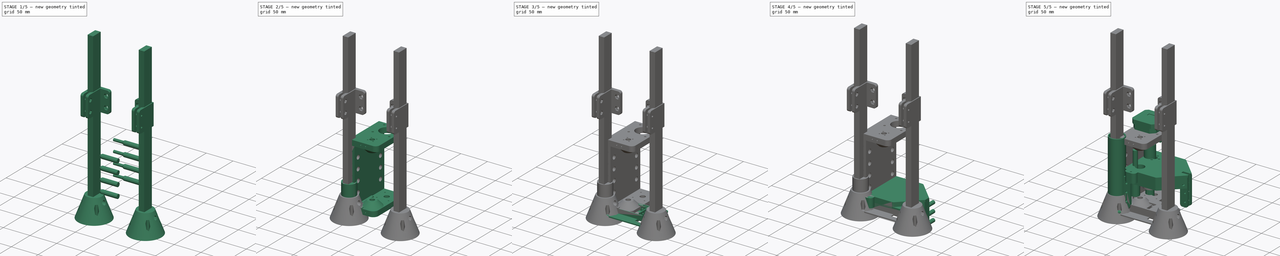
[diagram: build sequence overview — one tinted view per stage of 5, left to right]
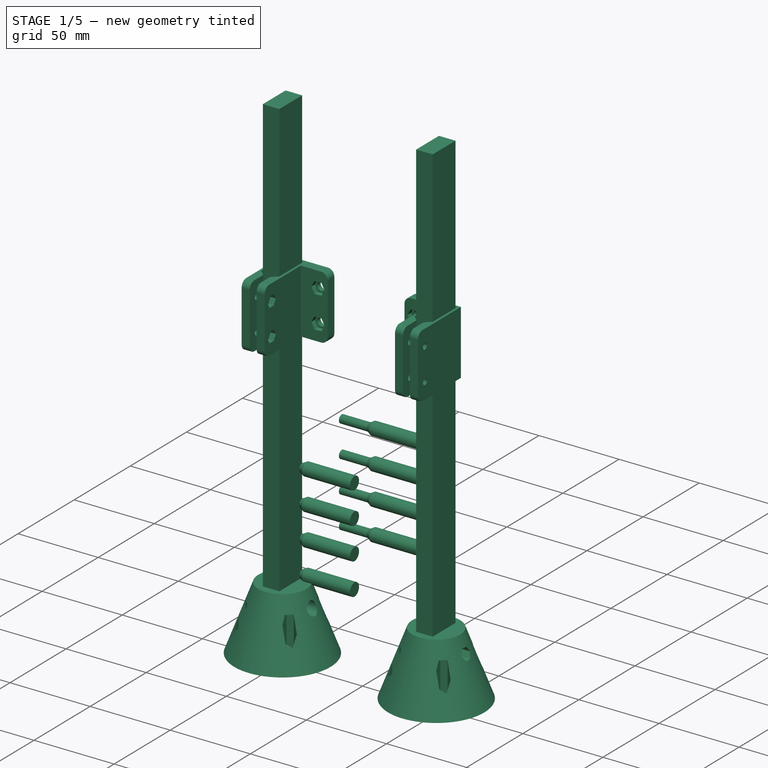
[diagram: stage 1 of 5 — iso view after this stage's code; geometry added in this stage tinted green]
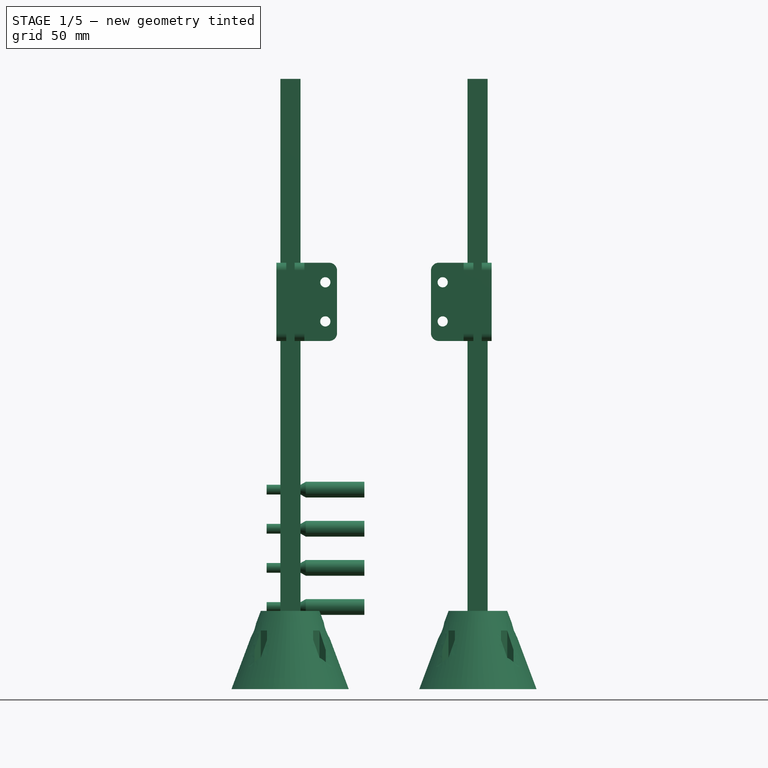
[diagram: stage 1 of 5 — front view after this stage's code; geometry added in this stage tinted green]
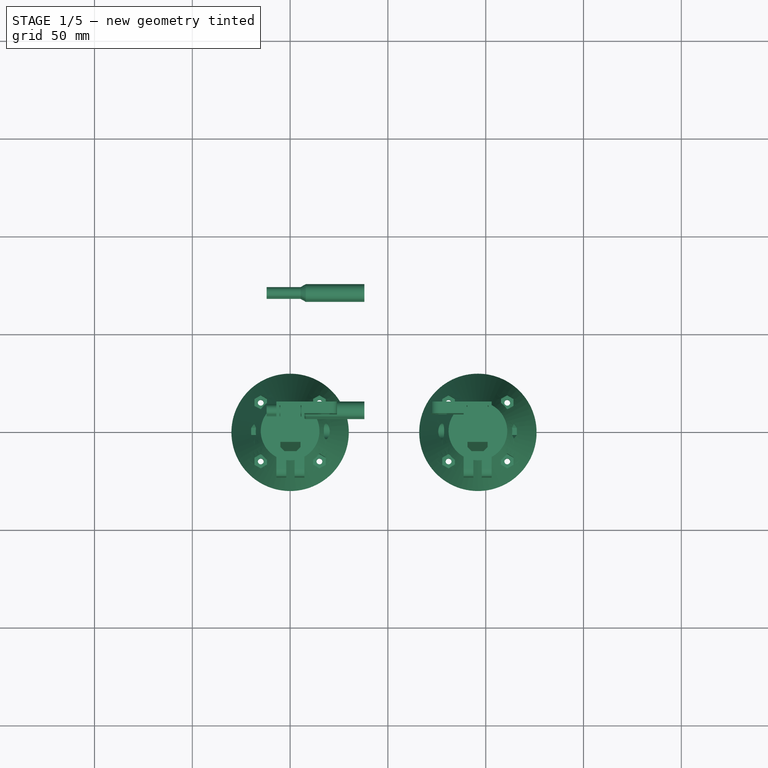
[diagram: stage 1 of 5 — top view after this stage's code; geometry added in this stage tinted green]
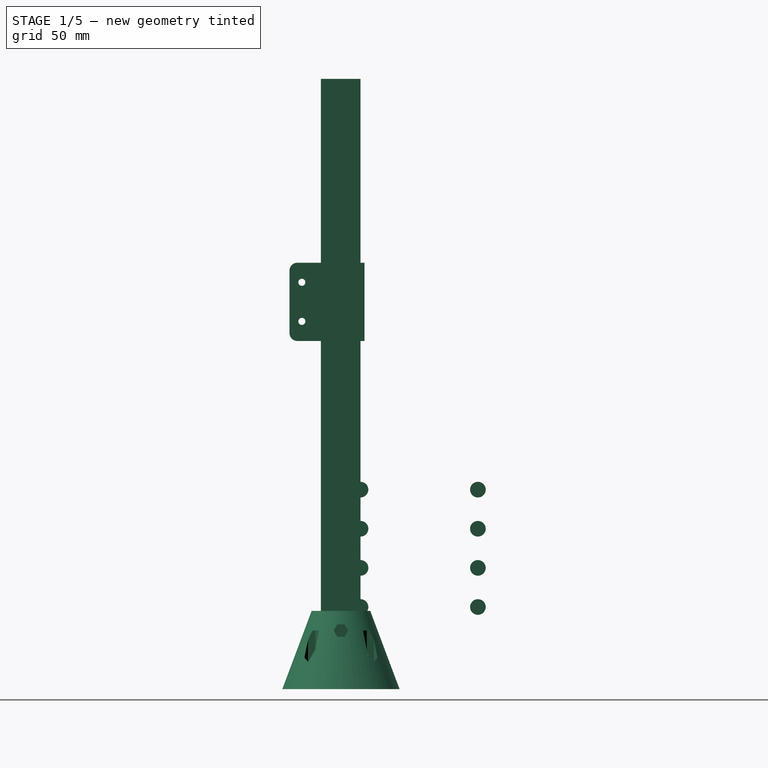
[diagram: stage 1 of 5 — right view after this stage's code; geometry added in this stage tinted green]
FCSTD DOCUMENT  (FreeCAD 0.18.4R)
Label: microscope
License: All rights reserved
LicenseURL: http://en.wikipedia.org/wiki/All_rights_reserved
objects: Part::Cylinder×73, Part::MultiFuse×40, Part::Box×36, Part::FeaturePython×33, Part::Cut×30, Part::Fillet×22, App::Part×20, PartDesign::Body×20, PartDesign::FeatureBase×18, Part::Compound×7, Part::Cone×5, Part::Mirroring×4, Part::RegularPolygon×3, Part::Extrusion×3, Sketcher::SketchObject×2, PartDesign::Pad×2, Part::Feature×2, Part::Chamfer×2, Spreadsheet::Sheet×1
note: 304 computed .brp shape members not serialized (recipe doc carries the construction recipe); baked Part::Feature solids carry a one-line shape summary decoded from their .brp

FEATURE [Part::Cylinder] Cylinder048  label="narrow hole"
  Angle = 360
  AttacherType = Attacher::AttachEngine3D
  Height = 20
  Placement = pos=(5,15,21) rot=(1,0,0;1.5708rad)
  Radius = 1
  expr: Placement.Base.x = p.mblock_wall_length / 2
FEATURE [Part::Cylinder] Cylinder049  label="wall bolt hole"
  Angle = 360
  AttacherType = Attacher::AttachEngine3D
  Height = 30
  Radius = 2.5
FEATURE [Part::Cone] Cone002  label="bolt cone"
  Angle = 360
  AttacherType = Attacher::AttachEngine3D
  Height = 3.5
  Placement = pos=(0,0,16.5) rot=(0,0,1;0rad)
  Radius1 = 2
  Radius2 = 4
FEATURE [Part::Cylinder] Cylinder050  label="wall bolt head hole"
  Angle = 360
  AttacherType = Attacher::AttachEngine3D
  Height = 30
  Placement = pos=(0,0,20) rot=(0,0,1;0rad)
  Radius = 4
FEATURE [Part::MultiFuse] Fusion019  label="wall bolt hole fusion"
  Placement = pos=(-12,10,30) rot=(0,1,0;1.5708rad)
  Shapes = -> [Cylinder049,Cone002,Cylinder050]
  expr: Placement.Base.x = -p.mblock_wall_length - 2
FEATURE [Part::FeaturePython] Array001021  label="wall bolt hole array"  # Draft array (typed FeaturePython)
  Angle = 360
  ArrayType = 0
  Axis = (0,0,1)
  Base = -> Fusion019
  Center = (0,0,0)
  Fuse = false
  IntervalAxis = (0,0,0)
  IntervalX = (1,0,0)
  IntervalY = (0,60,0)
  IntervalZ = (0,0,20)
  NumberPolar = 1
  NumberX = 1
  NumberY = 2
  NumberZ = 4
  expr: IntervalY.y = p.mblock_width - 20
FEATURE [Part::Box] Box038  label="cube 20x10"
  AttacherType = Attacher::AttachEngine3D
  Height = 300
  Length = 20.3
  Width = 10.3
  expr: Width = p.cube_profile_width
  expr: Length = p.cube_profile_length
FEATURE [App::Part] Part016  label="profile mockups"
  Group = -> [Cylinder071,Cylinder072,Box038]
  Origin = -> Origin024
FEATURE [Part::Cone] Cone006  label="Cone"
  Angle = 360
  AttacherType = Attacher::AttachEngine3D
  Height = 40
  Radius1 = 30
  Radius2 = 15
FEATURE [PartDesign::FeatureBase] Clone006
  BaseFeature = -> Box038
FEATURE [PartDesign::Body] Body008  label="cube 20x10 clone"
  BaseFeature = -> Box038
  Group = -> [Clone006]
  Origin = -> Origin026
  Placement = pos=(-10,-5,3) rot=(0,0,1;0rad)
  Tip = -> Clone006
FEATURE [Part::Cylinder] Cylinder073  label="screw bolt hole"
  Angle = 360
  AttacherType = Attacher::AttachEngine3D
  Height = 30
  Radius = 1.5
FEATURE [Part::Cylinder] Cylinder074  label="screw bolt hole001"
  Angle = 360
  AttacherType = Attacher::AttachEngine3D
  Height = 60
  Placement = pos=(0,0,0) rot=(1,0,0;1.5708rad)
  Radius = 1.5
FEATURE [Part::Cylinder] Cylinder075  label="bolt hole003"
  Angle = 360
  AttacherType = Attacher::AttachEngine3D
  Height = 30
  Placement = pos=(0,0,0) rot=(1,0,0;1.5708rad)
  Radius = 1.8
FEATURE [Part::Cylinder] Cylinder076  label="bolt head hole001"
  Angle = 360
  AttacherType = Attacher::AttachEngine3D
  Height = 20
  Placement = pos=(0,-2,0) rot=(1,0,0;1.5708rad)
  Radius = 4
FEATURE [Part::RegularPolygon] RegularPolygon001  label="m3 nut polygon001"
  AttacherType = Attacher::AttachEngine3D
  Circumradius = 3.7
  Polygon = 6
  expr: Circumradius = p.m3_nut_circumradius
FEATURE [Part::Extrusion] Extrude001  label="m3 nut extrude"
  Base = -> RegularPolygon001
  Dir = (0,0,1)
  DirMode = 2
  FaceMakerClass = Part::FaceMakerBullseye
  LengthFwd = 20
  LengthRev = 0
  Solid = true
  Symmetric = false
FEATURE [PartDesign::FeatureBase] Clone008
  BaseFeature = -> Extrude001
FEATURE [PartDesign::Body] Body010  label="m3 nut horizontal clone"
  BaseFeature = -> Extrude001
  Group = -> [Clone008]
  Origin = -> Origin028
  Placement = pos=(0,-40,1.18e-14) rot=(1,0,0;1.5708rad)
  Tip = -> Clone008
FEATURE [Part::MultiFuse] Fusion049  label="bolt with head hole fusion"
  Placement = pos=(0,30,30) rot=(0,0,1;0rad)
  Shapes = -> [Cylinder074,Cylinder075,Cylinder076,Body010]
FEATURE [PartDesign::FeatureBase] Clone009
  BaseFeature = -> Extrude001
FEATURE [PartDesign::Body] Body011  label="m3 nut vertical clone"
  BaseFeature = -> Extrude001
  Group = -> [Clone009]
  Origin = -> Origin029
  Placement = pos=(0,0,10) rot=(0,0,1;0rad)
  Tip = -> Clone009
FEATURE [Part::MultiFuse] Fusion050  label="screw bolt nut fusion"
  Placement = pos=(-15,-15,0) rot=(0,0,1;0rad)
  Shapes = -> [Cylinder073,Body011]
FEATURE [Part::FeaturePython] Array001041  label="bolt scre hole array"  # Draft array (typed FeaturePython)
  Angle = 360
  ArrayType = 0
  Axis = (0,0,1)
  Base = -> Fusion050
  Center = (0,0,0)
  Fuse = false
  IntervalAxis = (0,0,0)
  IntervalX = (30,0,0)
  IntervalY = (0,30,0)
  IntervalZ = (0,0,1)
  NumberPolar = 1
  NumberX = 2
  NumberY = 2
  NumberZ = 1
FEATURE [Part::MultiFuse] Fusion048  label="extraction fusion"
  Shapes = -> [Body008,Array001041,Fusion049]
FEATURE [Part::Cut] Cut023011  label="cube 20x10 stand cut"
  Base = -> Cone006
  Tool = -> Fusion048
FEATURE [App::Part] Part018  label="profile cap"
  Group = -> [Body012,Box039,Cut023012,Fillet019,Fillet020]
  Origin = -> Origin030
FEATURE [Part::Box] Box040  label="attachment external cube"
  AttacherType = Attacher::AttachEngine3D
  Height = 40
  Length = 38.3
  Width = 14.3
  expr: Height = p.cube_profile_attachment_height
  expr: Width = p.cube_profile_width + 2 * p.wall
  expr: Length = p.cube_profile_length + 2 * p.wall + 14
FEATURE [Part::Box] Box041  label="attachment internal cube"
  AttacherType = Attacher::AttachEngine3D
  Height = 40
  Length = 21.3
  Placement = pos=(2,1.5,0) rot=(0,0,1;0rad)
  Width = 11.3
  expr: Placement.Base.y = p.wall - 0.5
  expr: Placement.Base.x = p.wall
  expr: Height = p.cube_profile_attachment_height
  expr: Width = p.cube_profile_width + 1
  expr: Length = p.cube_profile_length + 1
FEATURE [Part::Box] Box042  label="attachment extraction"
  AttacherType = Attacher::AttachEngine3D
  Height = 40
  Length = 20
  Placement = pos=(20,5,0) rot=(0,0,1;0rad)
  Width = 4.3
  expr: Height = p.cube_profile_attachment_height
FEATURE [Part::Cylinder] Cylinder077  label="m4 bolt hole"
  Angle = 360
  AttacherType = Attacher::AttachEngine3D
  Height = 30
  Placement = pos=(0,0,0) rot=(-1,0,0;1.5708rad)
  Radius = 2.6
FEATURE [Part::RegularPolygon] RegularPolygon002  label="m4 nut polygon"
  AttacherType = Attacher::AttachEngine3D
  Circumradius = 4.2
  Polygon = 6
  expr: Circumradius = p.m4_nut_circumradius
FEATURE [Part::Extrusion] Extrude002  label="m4 nut hole"
  Base = -> RegularPolygon002
  Dir = (0,0,1)
  DirMode = 2
  FaceMakerClass = Part::FaceMakerBullseye
  LengthFwd = 20
  LengthRev = 0
  Solid = true
  Symmetric = false
FEATURE [PartDesign::FeatureBase] Clone011
  BaseFeature = -> Extrude002
FEATURE [PartDesign::Body] Body013  label="m4 nut hole clone"
  BaseFeature = -> Extrude002
  Group = -> [Clone011]
  Placement = pos=(0,-10,0) rot=(-1,0,0;1.5708rad)
  Tip = -> Clone011
FEATURE [Part::MultiFuse] Fusion052  label="m4 bolt nut fusion"
  Shapes = -> [Cylinder077,Body013]
FEATURE [Part::FeaturePython] Array001042  label="m4 bolt hole array"  # Draft array (typed FeaturePython)
  Angle = 360
  ArrayType = 0
  Axis = (0,0,1)
  Base = -> Fusion052
  Center = (0,0,0)
  Fuse = false
  IntervalAxis = (0,0,0)
  IntervalX = (1,0,0)
  IntervalY = (0,1,0)
  IntervalZ = (0,0,20)
  NumberPolar = 1
  NumberX = 1
  NumberY = 1
  NumberZ = 2
  Placement = pos=(13,25,10) rot=(0,0,1;1.5708rad)
FEATURE [PartDesign::FeatureBase] Clone012
  BaseFeature = -> Cut023011
FEATURE [PartDesign::Body] Body014  label="stand"
  BaseFeature = -> Cut023011
  Group = -> [Clone012]
  Origin = -> Origin035
  Placement = pos=(10,5,-12) rot=(0,0,1;0rad)
  Tip = -> Clone012
FEATURE [PartDesign::FeatureBase] Clone013
  BaseFeature = -> Box038
FEATURE [PartDesign::Body] Body017  label="frame clone"
  BaseFeature = -> Cut017
  Group = -> [Clone015]
  Origin = -> Origin038
  Placement = pos=(88,15,146) rot=(0,0,1;1.5708rad)
  Tip = -> Clone015
FEATURE [PartDesign::FeatureBase] Clone016
  BaseFeature = -> Extrude001
FEATURE [PartDesign::Body] Body018  label="m3 nut vertical clone001"
  BaseFeature = -> Extrude001
  Group = -> [Clone016]
  Origin = -> Origin039
  Placement = pos=(0,0,10) rot=(0,0,1;0rad)
  Tip = -> Clone016
FEATURE [App::Part] Part017  label="profile stand"
  Group = -> [Cone006,Body008,Cut023011,Cylinder073,Array001041,Fusion048,Cylinder074,Cylinder075,Cylinder076,Fusion049,Body011,Body010,Fusion050,Extrude001,RegularPolygon001,Body018]
  Origin = -> Origin025
FEATURE [Part::Box] Box044  label="frame attachment cube"
  AttacherType = Attacher::AttachEngine3D
  Height = 40
  Length = 6
  Placement = pos=(0,14,0) rot=(0,0,1;0rad)
  Width = 17
  expr: Height = p.cube_profile_attachment_height
FEATURE [Part::MultiFuse] Fusion055  label="attachment fusion"
  Shapes = -> [Box040,Box044]
FEATURE [Part::RegularPolygon] RegularPolygon003  label="m3 nut polygon"
  AttacherType = Attacher::AttachEngine3D
  Circumradius = 3.7
  Polygon = 6
  expr: Circumradius = p.m3_nut_circumradius
FEATURE [Part::Extrusion] Extrude003  label="m3 nut hole"
  Base = -> RegularPolygon003
  Dir = (0,0,1)
  DirMode = 2
  FaceMakerClass = Part::FaceMakerBullseye
  LengthFwd = 20
  LengthRev = 0
  Solid = true
  Symmetric = false
FEATURE [Part::Cylinder] Cylinder079  label="m3 bolt hole"
  Angle = 360
  AttacherType = Attacher::AttachEngine3D
  Height = 30
  Placement = pos=(0,0,0) rot=(-1,0,0;1.5708rad)
  Radius = 1.8
FEATURE [PartDesign::FeatureBase] Clone018
  BaseFeature = -> Extrude003
FEATURE [PartDesign::Body] Body020  label="m3 nut hole clone"
  BaseFeature = -> Extrude003
  Group = -> [Clone018]
  Origin = -> Origin040
  Placement = pos=(0,42,0) rot=(1,0,0;1.5708rad)
  Tip = -> Clone018
FEATURE [Part::MultiFuse] Fusion056  label="m3 bolt nut fusion"
  Shapes = -> [Cylinder079,Body020]
FEATURE [Part::FeaturePython] Array001044  label="m3 bolt hole array"  # Draft array (typed FeaturePython)
  Angle = 360
  ArrayType = 0
  Axis = (0,0,1)
  Base = -> Fusion056
  Center = (0,0,0)
  Fuse = false
  IntervalAxis = (0,0,0)
  IntervalX = (1,0,0)
  IntervalY = (0,1,0)
  IntervalZ = (0,0,20)
  NumberPolar = 1
  NumberX = 1
  NumberY = 1
  NumberZ = 2
  Placement = pos=(32,-11,10) rot=(0,0,1;0rad)
FEATURE [Part::MultiFuse] Fusion051  label="attachment extraction fusion"
  Shapes = -> [Box041,Array001042,Box042,Array001044]
FEATURE [Part::Cut] Cut023013  label="profile attachment cut"
  Base = -> Fusion055
  Tool = -> Fusion051
FEATURE [Part::Fillet] Fillet021  label="profile attachment fillet"
  Base = -> Cut023013
  Edges = 6 edges r=4: [Edge8,Edge16,Edge24,Edge32,Edge72,Edge116]
FEATURE [Part::Chamfer] Chamfer001  label="profile attachment chamber"
  Base = -> Fillet021
  Edges = 2 edges r=3: [Edge38,Edge63]
  Placement = pos=(0,0,0) rot=(0,0,-1;1.5708rad)
FEATURE [App::Part] Part019  label="profile attachment part"
  Group = -> [Box040,Box041,Box042,Fusion051,Cylinder077,Fusion052,Body013,Array001042,Cut023013,Fillet021,Chamfer001,Box044,Extrude002,RegularPolygon002,Fusion055,Body020,Cylinder079,Fusion056,Array001044,RegularPolygon003,Extrude003]
  Origin = -> Origin032
FEATURE [PartDesign::FeatureBase] Clone014
  BaseFeature = -> Chamfer001
FEATURE [PartDesign::Body] Body016  label="profile attachment clone"
  BaseFeature = -> Chamfer001
  Group = -> [Clone014]
  Origin = -> Origin037
  Placement = pos=(-2,-2,166) rot=(0,0,1;0rad)
  Tip = -> Clone014
FEATURE [Part::Compound] Compound006  label="stand compound"
  Links = -> [Body014,Body015,Body016]
  Placement = pos=(-10,-5,0) rot=(0,0,1;0rad)
FEATURE [PartDesign::FeatureBase] Clone019
  BaseFeature = -> Compound006
  Placement = pos=(-10,-5,0) rot=(0,0,1;0rad)
FEATURE [PartDesign::Body] Body021  label="stand compound clone"
  BaseFeature = -> Compound006
  Group = -> [Clone019]
  Origin = -> Origin041
  Placement = pos=(0,0,0) rot=(0,0,-1;1.5708rad)
  Tip = -> Clone019
FEATURE [Part::Mirroring] Part__Mirroring003  label="stand compound (Mirror #4)"
  Base = (48,0,0)
  Normal = (1,0,0)
  Source = -> Body021
FEATURE [Part::MultiFuse] Fusion054  label="stand compound fusion"
  Shapes = -> [Part__Mirroring003,Body021]
FEATURE [App::Part] Part020  label="bottom plate part"
  Group = -> [Body014,Body015,Body016,Compound006,Part__Mirroring003,Body017,Fusion054,Body021]
  Origin = -> Origin034
  Placement = pos=(0,0,12) rot=(0,0,1;0rad)
FEATURE [Part::Cylinder] Cylinder080  label="outer border"
  Angle = 360
  AttacherType = Attacher::AttachEngine3D
  Height = 14
  Radius = 15.7
FEATURE [Part::Cylinder] Cylinder081  label="internal border"
  Angle = 360
  AttacherType = Attacher::AttachEngine3D
  Height = 20
  Radius = 13.5
FEATURE [Part::Cylinder] Cylinder082  label="top plate"
  Angle = 360
  AttacherType = Attacher::AttachEngine3D
  Height = 1
  Radius = 15
FEATURE [Part::Cylinder] Cylinder083  label="top plate hole"
  Angle = 360
  AttacherType = Attacher::AttachEngine3D
  Height = 1
  Radius = 11
FEATURE [Part::Cut] Cut023015  label="top plate cut"
  Base = -> Cylinder082
  Tool = -> Cylinder083
FEATURE [Part::Cut] Cut023016  label="adapter tube cut"
  Base = -> Cylinder080
  Tool = -> Cylinder081
FEATURE [Part::MultiFuse] Fusion057  label="eyepiece adapter fusion"
  Shapes = -> [Cut023015,Cut023016]
FEATURE [App::Part] Part021  label="eyepiece adapter part"
  Group = -> [Cylinder080,Cylinder081,Cut023016,Cylinder083,Cylinder082,Cut023015,Fusion057]
  Origin = -> Origin042
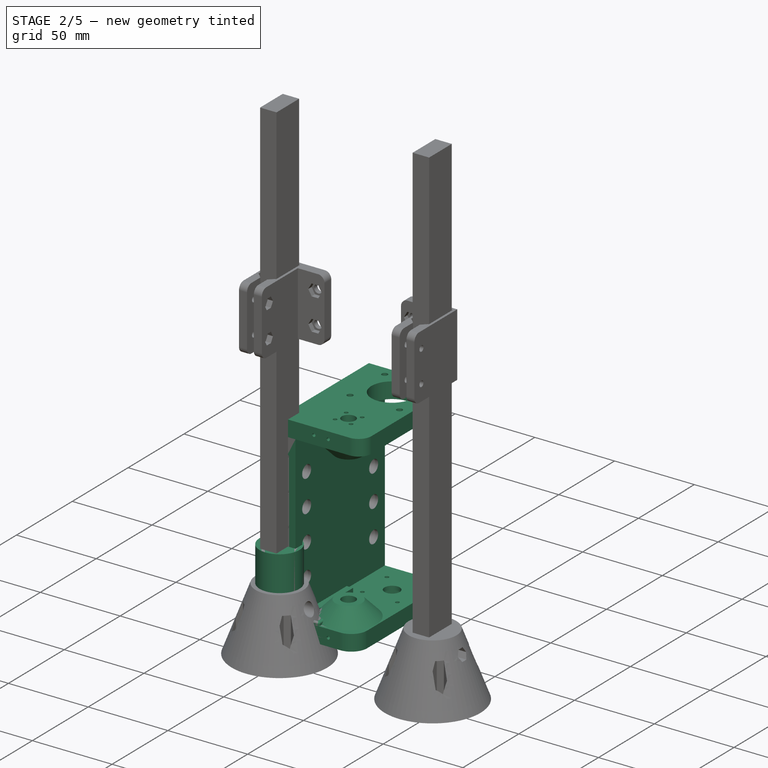
[diagram: stage 2 of 5 — iso view after this stage's code; geometry added in this stage tinted green]
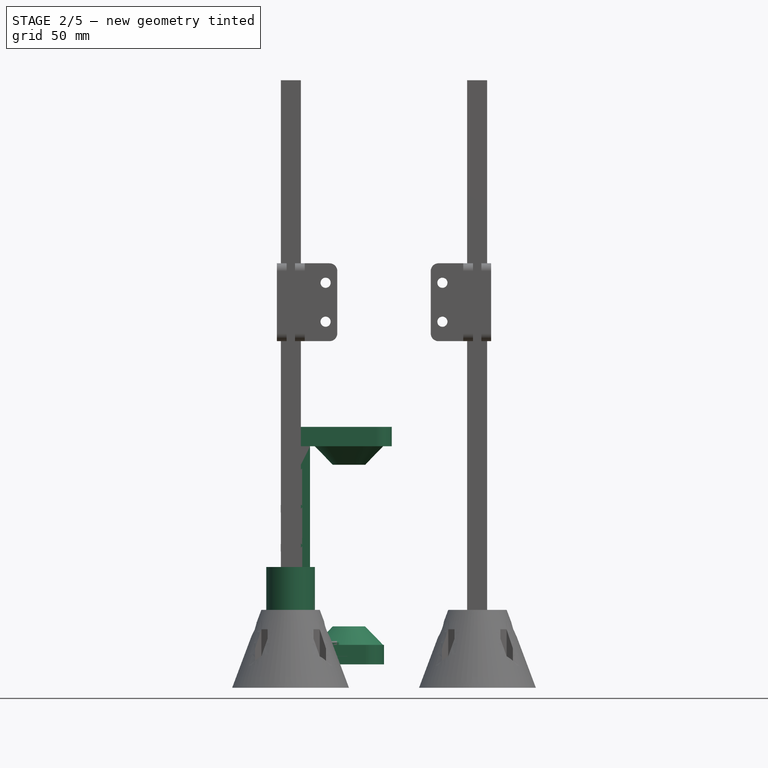
[diagram: stage 2 of 5 — front view after this stage's code; geometry added in this stage tinted green]
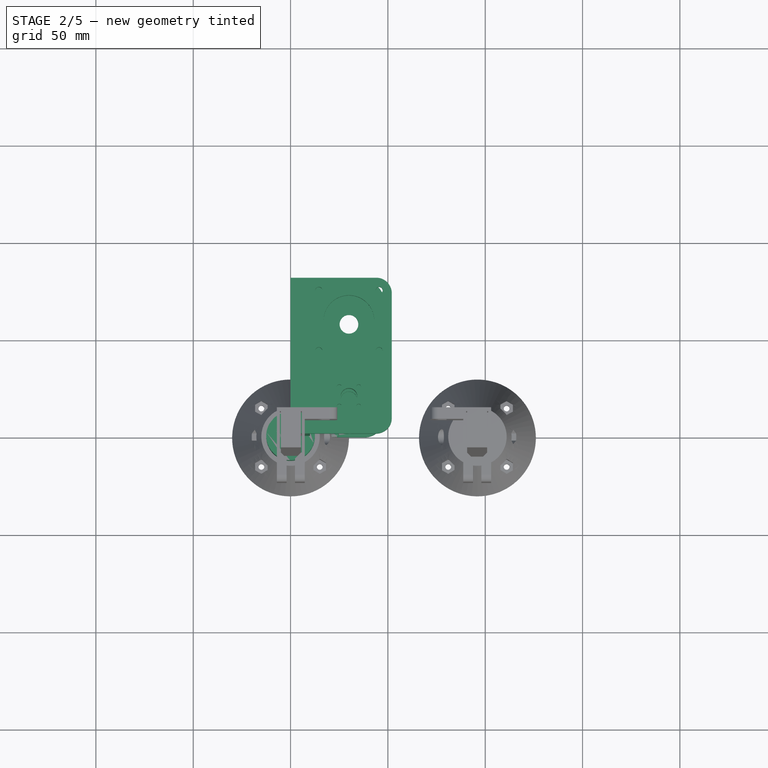
[diagram: stage 2 of 5 — top view after this stage's code; geometry added in this stage tinted green]
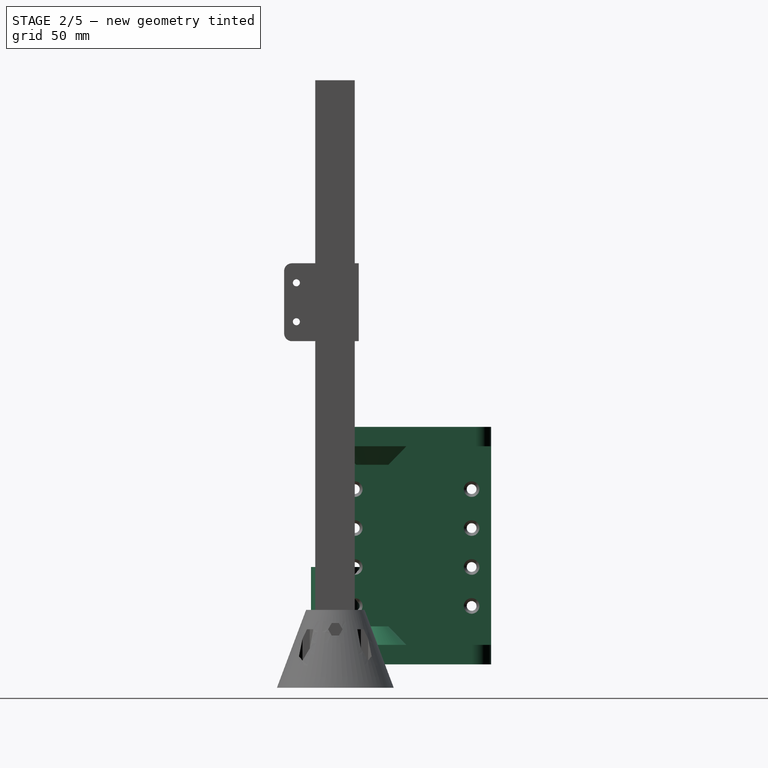
[diagram: stage 2 of 5 — right view after this stage's code; geometry added in this stage tinted green]
FEATURE [App::Part] Part007  label="top tube part"
  Group = -> [Cylinder020,Cylinder021,Cut,Cylinder022,Fusion,Body,Fusion004,Array001,Fillet001,Fillet002,Box,Fillet003,Cylinder023,Array002,Cut004,Compound002,Fillet004]
  Origin = -> Origin007
  Placement = pos=(89,40,7) rot=(0,0,1;3.14159rad)
FEATURE [Part::Box] Box001  label="mblock top"
  AttacherType = Attacher::AttachEngine3D
  Height = 10
  Length = 52
  Placement = pos=(0,0,112) rot=(0,0,1;0rad)
  Width = 80
  expr: Length = p.mblock_top_length
  expr: Placement.Base.z = p.mblock_wall_height
  expr: Height = p.mblock_top_height
  expr: Width = p.mblock_width
FEATURE [Part::Box] Box002  label="back wall"
  AttacherType = Attacher::AttachEngine3D
  Height = 112
  Length = 10
  Width = 80
  expr: Height = p.mblock_wall_height
  expr: Length = p.mblock_wall_length
  expr: Width = p.mblock_width
FEATURE [Part::Box] Box003  label="mblock bottom"
  AttacherType = Attacher::AttachEngine3D
  Height = 10
  Length = 48
  Width = 80
  expr: Length = p.mblock_bottom_length
  expr: Height = p.mblock_top_height
  expr: Width = p.mblock_width
FEATURE [Part::Cylinder] Cylinder040  label="end body narrow hole"
  Angle = 360
  AttacherType = Attacher::AttachEngine3D
  Height = 12
  Placement = pos=(0,0,0) rot=(0,1,0;1.5708rad)
  Radius = 1
FEATURE [Part::FeaturePython] Array001018  label="end stop narrow hole array"  # Draft array (typed FeaturePython)
  Angle = 360
  ArrayType = 0
  Axis = (0,0,1)
  Base = -> Cylinder040
  Center = (0,0,0)
  Fuse = false
  IntervalAxis = (0,0,0)
  IntervalX = (1,0,0)
  IntervalY = (0,9,0)
  IntervalZ = (0,0,1)
  NumberPolar = 1
  NumberX = 1
  NumberY = 2
  NumberZ = 1
  Placement = pos=(133.5,-7,13) rot=(0,0,1;1.5708rad)
FEATURE [PartDesign::FeatureBase] Clone003
  BaseFeature = -> Array001018
  Placement = pos=(133.5,-7,13) rot=(0,0,1;1.5708rad)
FEATURE [PartDesign::Body] Body004  label="bottom end stop narrow hole array clone"
  BaseFeature = -> Array001018
  Group = -> [Clone003]
  Origin = -> Origin015
  Placement = pos=(-103,6,-8) rot=(0,0,1;0rad)
  Tip = -> Clone003
FEATURE [PartDesign::FeatureBase] Clone004
  BaseFeature = -> Array001018
  Placement = pos=(133.5,-7,13) rot=(0,0,1;1.5708rad)
FEATURE [PartDesign::Body] Body005  label="top end stop narrow hole array clone"
  BaseFeature = -> Array001018
  Group = -> [Clone004]
  Origin = -> Origin016
  Placement = pos=(-103,6.5,104.5) rot=(0,0,1;0rad)
  Tip = -> Clone004
FEATURE [Part::Cylinder] Cylinder041  label="top rod hole"
  Angle = 360
  AttacherType = Attacher::AttachEngine3D
  Height = 24
  Placement = pos=(30,19,99.5) rot=(0,0,1;0rad)
  Radius = 4.3
  expr: Radius = p.rod_hole_r
FEATURE [Part::Cylinder] Cylinder042  label="bottom rod hole"
  Angle = 360
  AttacherType = Attacher::AttachEngine3D
  Height = 24
  Placement = pos=(30,19,14) rot=(0,0,1;0rad)
  Radius = 4.3
  expr: Radius = p.rod_hole_r
FEATURE [Part::Cylinder] Cylinder043  label="motor central hole"
  Angle = 360
  AttacherType = Attacher::AttachEngine3D
  Height = 30
  Placement = pos=(15.5,15.5,-5) rot=(0,0,1;0rad)
  Radius = 13
FEATURE [Part::Cylinder] Cylinder044  label="motor attachment hole"
  Angle = 360
  AttacherType = Attacher::AttachEngine3D
  Height = 20
  Radius = 1.8
FEATURE [Part::FeaturePython] Array001003  label="motor attachment hole array"  # Draft array (typed FeaturePython)
  Angle = 360
  ArrayType = 0
  Axis = (0,0,1)
  Base = -> Cylinder044
  Center = (0,0,0)
  Fuse = false
  IntervalAxis = (0,0,0)
  IntervalX = (31,0,0)
  IntervalY = (0,31,0)
  IntervalZ = (0,0,1)
  NumberPolar = 1
  NumberX = 2
  NumberY = 2
  NumberZ = 1
  expr: IntervalX.x = p.motor_attach_hole_dist
  expr: IntervalY.y = p.motor_attach_hole_dist
FEATURE [Part::MultiFuse] Fusion015  label="motor hole fusion"
  Placement = pos=(14.5,42.5,107.5) rot=(0,0,1;0rad)
  Shapes = -> [Cylinder043,Array001003]
FEATURE [Part::Cone] Cone  label="rod spacer cone"
  Angle = 360
  AttacherType = Attacher::AttachEngine3D
  Height = 10
  Placement = pos=(30,19,102.5) rot=(0,0,1;0rad)
  Radius1 = 8.3
  Radius2 = 18
  expr: Radius1 = p.rod_hole_r + 2 * p.wall
FEATURE [Part::Mirroring] Part__Mirroring  label="rod spacer cone (Mirror #1)"
  Base = (0,0,61)
  Normal = (0,0,1)
  Source = -> Cone
FEATURE [Part::Fillet] Fillet008  label="mblock top fillet"
  Base = -> Box001
  Edges = 2 edges r=8: [Edge5,Edge7]
FEATURE [Part::Fillet] Fillet009  label="mblock bottom fillet"
  Base = -> Box003
  Edges = 2 edges r=10: [Edge5,Edge7]
FEATURE [Part::MultiFuse] Fusion016  label="rod hole fusion"
  Shapes = -> [Cylinder041,Cylinder042]
FEATURE [Part::Cylinder] Cylinder045  label="lead bearing hole"
  Angle = 360
  AttacherType = Attacher::AttachEngine3D
  Height = 10
  Placement = pos=(0,0,-2.5) rot=(0,0,1;0rad)
  Radius = 11.3
  expr: Radius = p.lead_bearing_hole
FEATURE [Part::Cylinder] Cylinder046  label="bottom side lead hole"
  Angle = 360
  AttacherType = Attacher::AttachEngine3D
  Height = 10
  Placement = pos=(0,0,4) rot=(0,0,1;0rad)
  Radius = 4.8
  expr: Radius = p.lead_hole_r
FEATURE [Part::FeaturePython] Array001006  label="lead holder hole array"  # Draft array (typed FeaturePython)
  Angle = 360
  ArrayType = 0
  Axis = (0,0,1)
  Center = (0,0,0)
  Fuse = false
  IntervalAxis = (0,0,0)
  IntervalX = (22,0,0)
  IntervalY = (0,22,0)
  IntervalZ = (0,0,1)
  NumberPolar = 1
  NumberX = 2
  NumberY = 2
  NumberZ = 1
  Placement = pos=(0,0,-5) rot=(0,0,1;0rad)
FEATURE [Part::MultiFuse] Fusion029  label="bottom lead hole fusion"
  Placement = pos=(30,58,0) rot=(0,0,1;0rad)
  Shapes = -> [Cylinder045,Cylinder046,Array001006]
FEATURE [Part::MultiFuse] Fusion030  label="bottom hole fusion"
  Shapes = -> [Body004,Fusion029]
FEATURE [Part::Cut] Cut015  label="mblock bottom cut"
  Base = -> Fillet009
  Tool = -> Fusion030
FEATURE [Part::Cylinder] Cylinder047  label="rod cover hole"
  Angle = 360
  AttacherType = Attacher::AttachEngine3D
  Height = 20
  Placement = pos=(37,-5,-129) rot=(0,0,1;0rad)
  Radius = 1.2
FEATURE [Part::FeaturePython] Array001019  label="rod holder hole array"  # Draft array (typed FeaturePython)
  Angle = 360
  ArrayType = 0
  Axis = (0,0,1)
  Base = -> Cylinder047
  Center = (0,0,0)
  Fuse = false
  IntervalAxis = (0,0,0)
  IntervalX = (10,0,0)
  IntervalY = (0,10,0)
  IntervalZ = (0,0,1)
  NumberPolar = 1
  NumberX = 2
  NumberY = 2
  NumberZ = 1
  Placement = pos=(-12,19,240) rot=(0,0,1;0rad)
FEATURE [Part::MultiFuse] Fusion031  label="top hole fusion001"
  Shapes = -> [Fusion015,Body005,Array001019]
FEATURE [Part::Cut] Cut016  label="mblock top cut"
  Base = -> Fillet008
  Tool = -> Fusion031
FEATURE [Part::FeaturePython] Array001020  label="narrow hole array"  # Draft array (typed FeaturePython)
  Angle = 360
  ArrayType = 0
  Axis = (0,0,1)
  Base = -> Cylinder048
  Center = (0,0,0)
  Fuse = false
  IntervalAxis = (0,0,0)
  IntervalX = (1,0,0)
  IntervalY = (0,70,0)
  IntervalZ = (0,0,20)
  NumberPolar = 1
  NumberX = 1
  NumberY = 2
  NumberZ = 5
  expr: IntervalY.y = p.mblock_width - 10
FEATURE [Part::MultiFuse] Fusion032  label="mblock wall hole fusion"
  Shapes = -> [Array001021,Array001020]
FEATURE [Part::Cut] Cut018  label="mblock wall cut"
  Base = -> Box002
  Tool = -> Fusion032
FEATURE [Part::MultiFuse] Fusion017  label="frame fusion"
  Shapes = -> [Cut015,Cut016,Cone,Part__Mirroring,Cut018]
FEATURE [Part::Cut] Cut017  label="frame cut"
  Base = -> Fusion017
  Tool = -> Fusion016
FEATURE [Part::Box] Box036  label="bottom wire hole"
  AttacherType = Attacher::AttachEngine3D
  Height = 10
  Length = 4
  Placement = pos=(12,-7,3) rot=(0,0,1;0rad)
  Width = 50
FEATURE [App::Part] Part013  label="micro slide underbox part"
  Group = -> [Box023,Cylinder052,Array001023,Box024,Fusion034,Cut021,Box025,Box026,Cut022,Cylinder053,Array001024,Fusion035,Cylinder054,Array001025,Cut023,Array001027,Fusion038,Cone003,Fillet012,Cylinder056,Array001028,Array001032,Cylinder062,Box029,Fillet015,Cut023006,Cylinder063,Array001033,Fillet016,Box031,Fusion042,Cut023007,Cylinder064,Array001034,Fusion043,Box032,Box033,Cut023008,Cylinder065,Array001035,+14 more]
  Origin = -> Origin019
FEATURE [Part::Box] Box037  label="wire holder plane plate"
  AttacherType = Attacher::AttachEngine3D
  Height = 100
  Length = 10
  Placement = pos=(-5,-6,-4) rot=(0,0,1;0rad)
  Width = 2
FEATURE [Sketcher::SketchObject] Sketch001
  MapMode = 5
  Support = -> [XY_Plane018]
  sketch-geometry (22):
    g0: LineSegment StartX=5 StartY=-6 StartZ=0 EndX=-5 EndY=-6 EndZ=0
    g1: LineSegment StartX=5 StartY=-3.96718 StartZ=0 EndX=5 EndY=-6 EndZ=0
    g2-g11: Circle [constr] x10 (B-spline internal-alignment scaffolding for g12; pole/knot coordinates omitted)
    g12: BSplineCurve PolesCount=10 KnotsCount=8 Degree=3 IsPeriodic=0
    g13-g20: GeomPoint [constr] x8 (B-spline internal-alignment scaffolding for g12; pole/knot coordinates omitted)
    g21: LineSegment StartX=-0.224708 StartY=-3.96718 StartZ=0 EndX=5 EndY=-3.96718 EndZ=0
  constraints (12):
    c: Coincident(g1,g0)
    c: Vertical(g1)
    c: DistanceX(g0,g0) = 10
    c: Symmetric(g0,g0,g-2)
    c: Coincident(g12,g0)
    c: Radius(g2) = 0.6
    c: Equal(g2, g3-g11) x9
    c: InternalAlignment(g2-g11 -> g12) x10
    c: InternalAlignment(g13-g20 -> g12) x8
    c: Coincident(g21,g12)
    c: Coincident(g21,g1)
    c: Horizontal(g21)
FEATURE [PartDesign::Pad] Pad001
  Length = 4
  Length2 = 100
  Profile = -> Sketch001
  Type = 0
FEATURE [PartDesign::Body] Body006
  Group = -> [Sketch001,Pad001]
  Origin = -> Origin022
  Placement = pos=(0,0,-2) rot=(0,0,1;0rad)
  Tip = -> Pad001
FEATURE [Part::Mirroring] Part__Mirroring002  label="Body006 (Mirror #3)"
  Base = (0,0,0)
  Normal = (1,0,0)
  Placement = pos=(0,0,12) rot=(0,0,1;0rad)
  Source = -> Body006
FEATURE [Part::MultiFuse] Fusion046  label="wire holder bodies fusion"
  Shapes = -> [Body006,Part__Mirroring002]
FEATURE [Part::FeaturePython] Array001040  label="holdery array"  # Draft array (typed FeaturePython)
  Angle = 360
  ArrayType = 0
  Axis = (0,0,1)
  Base = -> Fusion046
  Center = (0,0,0)
  Fuse = false
  IntervalAxis = (0,0,0)
  IntervalX = (1,0,0)
  IntervalY = (0,1,0)
  IntervalZ = (0,0,20)
  NumberPolar = 1
  NumberX = 1
  NumberY = 1
  NumberZ = 5
FEATURE [Part::Cylinder] Cylinder069  label="screw hole"
  Angle = 360
  AttacherType = Attacher::AttachEngine3D
  Height = 10
  Radius = 1.5
FEATURE [Part::Cone] Cone005  label="screw cone hole"
  Angle = 360
  AttacherType = Attacher::AttachEngine3D
  Height = 2
  Radius1 = 2.5
  Radius2 = 1.8
FEATURE [Part::Cylinder] Cylinder070  label="screw head hole"
  Angle = 360
  AttacherType = Attacher::AttachEngine3D
  Height = 2
  Placement = pos=(0,0,-2) rot=(0,0,1;0rad)
  Radius = 2.5
FEATURE [Part::MultiFuse] Fusion047  label="screw hole fusion"
  Shapes = -> [Cylinder069,Cone005,Cylinder070]
FEATURE [PartDesign::FeatureBase] Clone005
  BaseFeature = -> Fusion047
FEATURE [PartDesign::Body] Body007  label="screw hole clone"
  BaseFeature = -> Fusion047
  Group = -> [Clone005]
  Origin = -> Origin023
  Placement = pos=(0,-4,6) rot=(1,0,0;1.5708rad)
  Tip = -> Clone005
FEATURE [Part::FeaturePython] Array001039  label="screw hole array"  # Draft array (typed FeaturePython)
  Angle = 360
  ArrayType = 0
  Axis = (0,0,1)
  Base = -> Body007
  Center = (0,0,0)
  Fuse = false
  IntervalAxis = (0,0,0)
  IntervalX = (1,0,0)
  IntervalY = (0,70,0)
  IntervalZ = (0,0,20)
  NumberPolar = 1
  NumberX = 1
  NumberY = 1
  NumberZ = 5
  expr: IntervalY.y = p.mblock_width - 10
FEATURE [Part::Cut] Cut023010  label="wire holder cube cut"
  Base = -> Box037
  Tool = -> Array001039
FEATURE [Part::Compound] Compound005  label="wire holder compound"
  Links = -> [Array001040,Cut023010,Fusion046]
FEATURE [App::Part] Part015  label="wire holder part"
  Group = -> [Box037,Array001039,Body006,Part__Mirroring002,Array001040,Fusion046,Body007,Cut023010,Compound005]
  Origin = -> Origin021
  Placement = pos=(5,88,15) rot=(0,0,1;0rad)
FEATURE [Part::Cylinder] Cylinder071  label="round d25"
  Angle = 360
  AttacherType = Attacher::AttachEngine3D
  Height = 50
  Radius = 12.5
FEATURE [Part::Cylinder] Cylinder072  label="round d16"
  Angle = 360
  AttacherType = Attacher::AttachEngine3D
  Height = 50
  Radius = 8
FEATURE [PartDesign::FeatureBase] Clone010
  BaseFeature = -> Box038
FEATURE [PartDesign::Body] Body012  label="cube 20x10 clone001"
  BaseFeature = -> Box038
  Group = -> [Clone010]
  Origin = -> Origin031
  Placement = pos=(2,2,2) rot=(0,0,1;0rad)
  Tip = -> Clone010
FEATURE [Part::Box] Box039  label="external cube"
  AttacherType = Attacher::AttachEngine3D
  Height = 12
  Length = 24.8
  Width = 14.8
FEATURE [Part::Fillet] Fillet019  label="profile cap fillet"
  Base = -> Box039
  Edges = 12 edges r=1: [Edge1,Edge2,Edge3,Edge4,Edge5,Edge6,Edge7,Edge8,Edge9,Edge10,Edge11,Edge12]
FEATURE [Part::Cut] Cut023012  label="profile cap cut"
  Base = -> Fillet019
  Tool = -> Body012
FEATURE [Part::Fillet] Fillet020  label="profile cap outer fillet"
  Base = -> Cut023012
  Edges = 4 edges r=0.9: [Edge32,Edge33,Edge34,Edge35]
FEATURE [PartDesign::Body] Body015  label="profile 20x10"
  BaseFeature = -> Box038
  Group = -> [Clone013]
  Origin = -> Origin036
  Tip = -> Clone013
FEATURE [PartDesign::FeatureBase] Clone015
  BaseFeature = -> Cut017
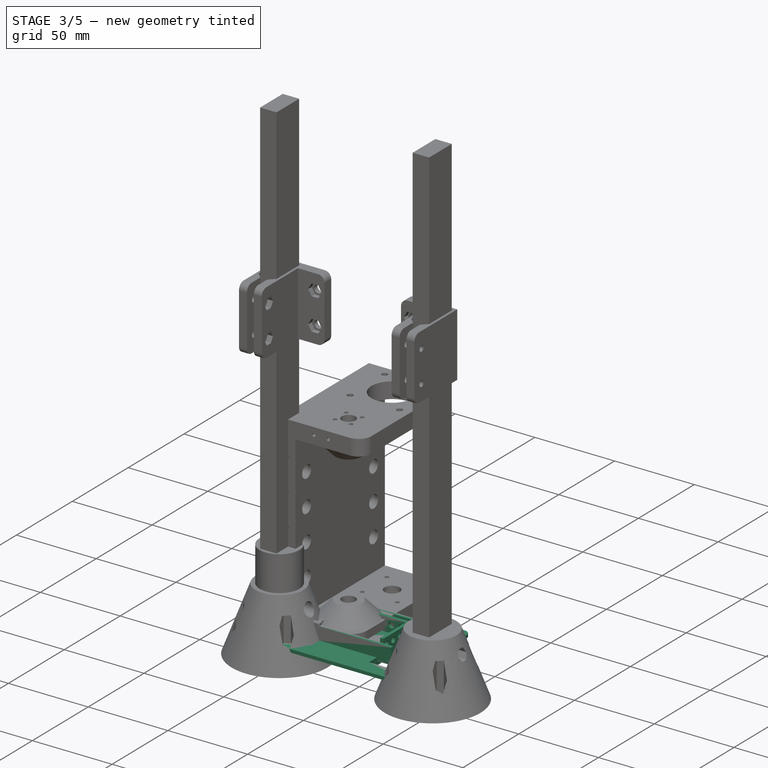
[diagram: stage 3 of 5 — iso view after this stage's code; geometry added in this stage tinted green]
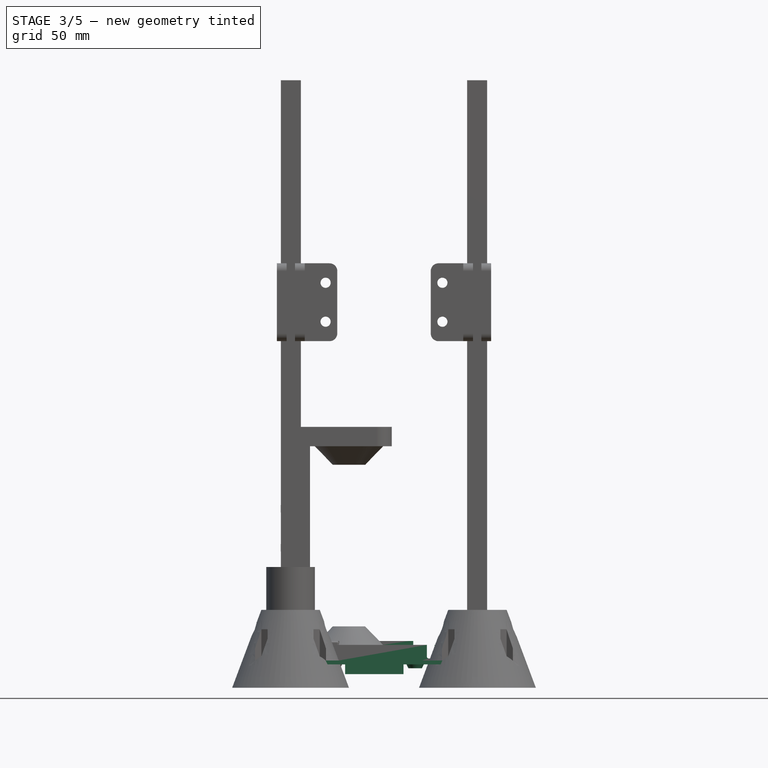
[diagram: stage 3 of 5 — front view after this stage's code; geometry added in this stage tinted green]
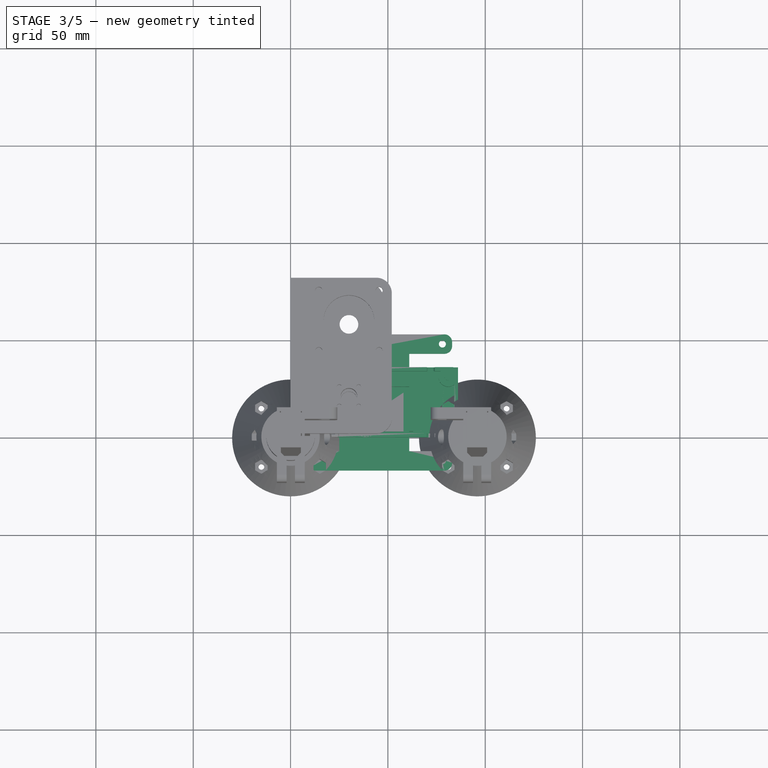
[diagram: stage 3 of 5 — top view after this stage's code; geometry added in this stage tinted green]
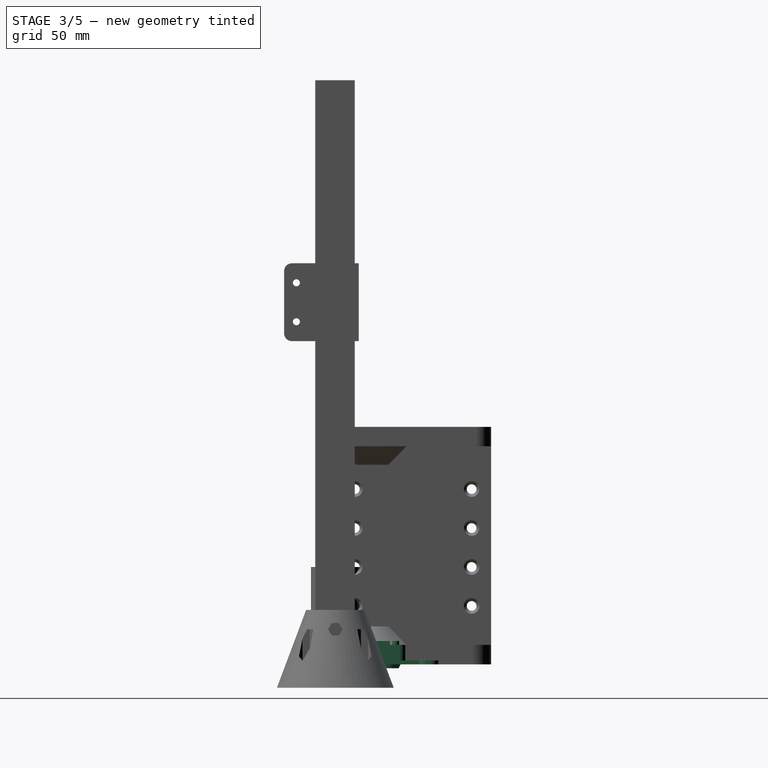
[diagram: stage 3 of 5 — right view after this stage's code; geometry added in this stage tinted green]
FEATURE [App::Part] Part011  label="micro slide holder"
  Group = -> [Box019,Box020,Cut019,Box022,Fusion033,Fillet010,Cylinder051,Array001022,Cut020]
  Origin = -> Origin017
  Placement = pos=(0,0,24) rot=(0,0,1;0rad)
FEATURE [Part::Box] Box023  label="msub top"
  AttacherType = Attacher::AttachEngine3D
  Height = 2
  Length = 86
  Width = 36
  expr: Height = p.wall
  expr: Width = p.msub_width
  expr: Length = p.msub_length
FEATURE [Part::Box] Box027  label="msub top001"
  AttacherType = Attacher::AttachEngine3D
  Height = 2
  Length = 86
  Width = 36
  expr: Height = p.wall
  expr: Width = p.msub_width
  expr: Length = p.msub_length
FEATURE [Part::Box] Box028  label="msub top hole001"
  AttacherType = Attacher::AttachEngine3D
  Height = 10
  Length = 30
  Placement = pos=(28,3,-5) rot=(0,0,1;0rad)
  Width = 20
  expr: Length = p.mh_hole_length
  expr: Placement.Base.y = p.wall + 1
  expr: Placement.Base.x = (p.msub_length - p.mh_hole_length) / 2
  expr: Width = p.mh_hole_width
FEATURE [Part::Cone] Cone003  label="bolt cone stand"
  Angle = 360
  AttacherType = Attacher::AttachEngine3D
  Height = 3
  Placement = pos=(22,29,-2) rot=(0,0,1;0rad)
  Radius1 = 3.5
  Radius2 = 5
  expr: Placement.Base.z = -p.wall
  expr: Placement.Base.y = p.msub_width - p.wall - 5
  expr: Placement.Base.x = (p.msub_length - p.mh_bolt_hole_dist) / 2
  expr: Radius2 = 3 + p.wall
  expr: Radius1 = 1.5 + p.wall
FEATURE [Part::FeaturePython] Array001027  label="microslider bolt stand array"  # Draft array (typed FeaturePython)
  Angle = 360
  ArrayType = 0
  Axis = (0,0,1)
  Base = -> Cone003
  Center = (0,0,0)
  Fuse = false
  IntervalAxis = (0,0,0)
  IntervalX = (42,0,0)
  IntervalY = (0,1,0)
  IntervalZ = (0,0,1)
  NumberPolar = 1
  NumberX = 2
  NumberY = 1
  NumberZ = 1
  expr: IntervalX.x = p.mh_bolt_hole_dist
FEATURE [Part::Fillet] Fillet012  label="msub top fillet"
  Base = -> Box023
  Edges = 4 edges r=3: [Edge1,Edge3,Edge5,Edge7]
FEATURE [Part::MultiFuse] Fusion038  label="msub top fusion"
  Shapes = -> [Array001027,Fillet012]
FEATURE [Part::Cylinder] Cylinder056  label="msub bolt hole001"
  Angle = 360
  AttacherType = Attacher::AttachEngine3D
  Height = 12
  Placement = pos=(5,5,0) rot=(0,0,1;0rad)
  Radius = 1.8
  expr: Height = p.msub_height
FEATURE [Part::FeaturePython] Array001028  label="msub bolt hole array001"  # Draft array (typed FeaturePython)
  Angle = 360
  ArrayType = 0
  Axis = (0,0,1)
  Base = -> Cylinder056
  Center = (0,0,0)
  Fuse = false
  IntervalAxis = (0,0,0)
  IntervalX = (76,0,0)
  IntervalY = (0,26,0)
  IntervalZ = (0,0,1)
  NumberPolar = 1
  NumberX = 2
  NumberY = 2
  NumberZ = 1
  expr: IntervalX.x = p.msub_length - 10
  expr: IntervalY.y = p.msub_width - 10
FEATURE [Part::Cylinder] Cylinder057  label="side bearing central hole cylinder001"
  Angle = 360
  AttacherType = Attacher::AttachEngine3D
  Height = 15
  Placement = pos=(15,15,-4) rot=(0,0,1;0rad)
  Radius = 5
FEATURE [Part::Cylinder] Cylinder058  label="Cylinder007"
  Angle = 360
  AttacherType = Attacher::AttachEngine3D
  Height = 20
  Placement = pos=(4,4,-7) rot=(0,0,1;0rad)
  Radius = 1.6
FEATURE [Part::FeaturePython] Array001029  label="lead holder hole array001"  # Draft array (typed FeaturePython)
  Angle = 360
  ArrayType = 0
  Axis = (0,0,1)
  Base = -> Cylinder058
  Center = (0,0,0)
  Fuse = false
  IntervalAxis = (0,0,0)
  IntervalX = (22,0,0)
  IntervalY = (0,22,0)
  IntervalZ = (0,0,1)
  NumberPolar = 1
  NumberX = 2
  NumberY = 2
  NumberZ = 1
FEATURE [Part::MultiFuse] Fusion039
  Shapes = -> [Array001029,Cylinder057]
FEATURE [Part::Box] Box007  label="bearing cover cube"
  AttacherType = Attacher::AttachEngine3D
  Height = 2
  Length = 30
  Width = 30
FEATURE [Part::Cut] Cut023004  label="bearing cover cut"
  Base = -> Box007
  Tool = -> Fusion039
FEATURE [Part::Fillet] Fillet013  label="bearing cover fillet"
  Base = -> Cut023004
  Edges = 4 edges r=4: [Edge1,Edge3,Edge6,Edge16]
FEATURE [App::Part] Part014  label="bearing cover part"
  Group = -> [Box007,Cylinder058,Array001029,Cut023004,Cylinder057,Fusion039,Fillet013]
  Origin = -> Origin020
  Placement = pos=(15,43,-7) rot=(0,0,1;0rad)
FEATURE [Part::Box] Box008  label="rod cover cube"
  AttacherType = Attacher::AttachEngine3D
  Height = 2
  Length = 16
  Width = 16
FEATURE [Part::Cylinder] Cylinder059  label="Cylinder008"
  Angle = 360
  AttacherType = Attacher::AttachEngine3D
  Height = 20
  Placement = pos=(3,3,-6) rot=(0,0,1;0rad)
  Radius = 1.8
FEATURE [Part::FeaturePython] Array001007  label="rod holder hole array001"  # Draft array (typed FeaturePython)
  Angle = 360
  ArrayType = 0
  Axis = (0,0,1)
  Base = -> Cylinder059
  Center = (0,0,0)
  Fuse = false
  IntervalAxis = (0,0,0)
  IntervalX = (10,0,0)
  IntervalY = (0,10,0)
  IntervalZ = (0,0,1)
  NumberPolar = 1
  NumberX = 2
  NumberY = 2
  NumberZ = 1
FEATURE [Part::Cut] Cut023005  label="rod cover cut"
  Base = -> Box008
  Tool = -> Array001007
FEATURE [Part::Fillet] Fillet014  label="rod cover fillet"
  Base = -> Cut023005
  Edges = 4 edges r=4: [Edge1,Edge3,Edge6,Edge15]
FEATURE [Part::Cylinder] Cylinder060  label="rod hole filler"
  Angle = 360
  AttacherType = Attacher::AttachEngine3D
  Height = 9
  Placement = pos=(8,8,-9) rot=(0,0,1;0rad)
  Radius = 3.3
  expr: Radius = p.rod_hole_r - 1
FEATURE [Part::Compound] Compound004  label="rod cover compound"
  Links = -> [Fillet014,Cylinder060]
FEATURE [App::Part] Part003  label="rod cover part"
  Group = -> [Box008,Cylinder059,Array001007,Cut023005,Fillet014,Cylinder060,Compound004]
  Origin = -> Origin003
  Placement = pos=(23,11.5,193) rot=(0,0,1;0rad)
FEATURE [Part::Box] Box029  label="msub top002"
  AttacherType = Attacher::AttachEngine3D
  Height = 10
  Length = 86
  Width = 36
  expr: Width = p.msub_width
  expr: Length = p.msub_length
FEATURE [Part::Fillet] Fillet015  label="msub top fillet001"
  Base = -> Box029
  Edges = 4 edges r=3: [Edge1,Edge3,Edge5,Edge7]
FEATURE [Part::Cylinder] Cylinder062  label="msub bolt hole002"
  Angle = 360
  AttacherType = Attacher::AttachEngine3D
  Height = 12
  Placement = pos=(5,5,0) rot=(0,0,1;0rad)
  Radius = 1.8
  expr: Height = p.msub_height
FEATURE [Part::FeaturePython] Array001032  label="msub bolt hole array002"  # Draft array (typed FeaturePython)
  Angle = 360
  ArrayType = 0
  Axis = (0,0,1)
  Base = -> Cylinder062
  Center = (0,0,0)
  Fuse = false
  IntervalAxis = (0,0,0)
  IntervalX = (76,0,0)
  IntervalY = (0,26,0)
  IntervalZ = (0,0,1)
  NumberPolar = 1
  NumberX = 2
  NumberY = 2
  NumberZ = 1
  expr: IntervalX.x = p.msub_length - 10
  expr: IntervalY.y = p.msub_width - 10
FEATURE [Part::Box] Box031  label="msub top003"
  AttacherType = Attacher::AttachEngine3D
  Height = 10
  Length = 82
  Placement = pos=(2,2,2) rot=(0,0,1;0rad)
  Width = 32
  expr: Placement.Base.z = p.wall
  expr: Placement.Base.x = p.wall
  expr: Placement.Base.y = p.wall
  expr: Width = p.msub_width - 2 * p.wall
  expr: Length = p.msub_length - 2 * p.wall
FEATURE [Part::Fillet] Fillet016  label="msub top fillet002"
  Base = -> Box031
  Edges = 4 edges r=3: [Edge1,Edge3,Edge5,Edge7]
FEATURE [Part::Cut] Cut023006  label="msub bottom external wall cut"
  Base = -> Fillet015
  Tool = -> Fillet016
FEATURE [Part::Cylinder] Cylinder063  label="msub bolt cylinder001"
  Angle = 360
  AttacherType = Attacher::AttachEngine3D
  Height = 10
  Placement = pos=(5,5,0) rot=(0,0,1;0rad)
  Radius = 5
FEATURE [Part::FeaturePython] Array001033  label="msub bolt cylinder array001"  # Draft array (typed FeaturePython)
  Angle = 360
  ArrayType = 0
  Axis = (0,0,1)
  Base = -> Cylinder063
  Center = (0,0,0)
  Fuse = false
  IntervalAxis = (0,0,0)
  IntervalX = (76,0,0)
  IntervalY = (0,26,0)
  IntervalZ = (0,0,1)
  NumberPolar = 1
  NumberX = 2
  NumberY = 2
  NumberZ = 1
  expr: IntervalX.x = p.msub_length - 10
  expr: IntervalY.y = p.msub_width - 10
FEATURE [Part::Cylinder] Cylinder064  label="msub bolt head hole"
  Angle = 360
  AttacherType = Attacher::AttachEngine3D
  Height = 12
  Placement = pos=(5,5,-6) rot=(0,0,1;0rad)
  Radius = 3
  expr: Height = p.msub_height
FEATURE [Part::FeaturePython] Array001034  label="msub bolt head hole array"  # Draft array (typed FeaturePython)
  Angle = 360
  ArrayType = 0
  Axis = (0,0,1)
  Base = -> Cylinder064
  Center = (0,0,0)
  Fuse = false
  IntervalAxis = (0,0,0)
  IntervalX = (76,0,0)
  IntervalY = (0,26,0)
  IntervalZ = (0,0,1)
  NumberPolar = 1
  NumberX = 2
  NumberY = 2
  NumberZ = 1
  expr: IntervalX.x = p.msub_length - 10
  expr: IntervalY.y = p.msub_width - 10
FEATURE [Part::Box] Box032  label="led wall cube"
  AttacherType = Attacher::AttachEngine3D
  Height = 10
  Length = 40
  Placement = pos=(23,3,0) rot=(0,0,1;0rad)
  Width = 25
  expr: Placement.Base.y = p.wall + 1
  expr: Placement.Base.x = (p.msub_length - p.mh_hole_length - 10) / 2
  expr: Width = p.mh_hole_width + 5
  expr: Length = p.mh_hole_length + 10
FEATURE [Part::Box] Box033  label="led wall extraction"
  AttacherType = Attacher::AttachEngine3D
  Height = 10
  Length = 36
  Placement = pos=(25,1,0) rot=(0,0,1;0rad)
  Width = 25
  expr: Placement.Base.x = (p.msub_length - p.mh_hole_length - 10) / 2 + p.wall
  expr: Width = p.mh_hole_width + 5
  expr: Length = p.mh_hole_length + 10 - 2 * p.wall
FEATURE [Part::Cylinder] Cylinder065  label="led hole"
  Angle = 360
  AttacherType = Attacher::AttachEngine3D
  Height = 20
  Placement = pos=(28,37,6) rot=(1,0,0;1.5708rad)
  Radius = 1.8
  expr: Radius = p.led_r
FEATURE [Part::FeaturePython] Array001035  label="led hole array"  # Draft array (typed FeaturePython)
  Angle = 360
  ArrayType = 0
  Axis = (0,0,1)
  Base = -> Cylinder065
  Center = (0,0,0)
  Fuse = false
  IntervalAxis = (0,0,0)
  IntervalX = (6,0,0)
  IntervalY = (0,3,0)
  IntervalZ = (0,0,1)
  NumberPolar = 1
  NumberX = 6
  NumberY = 1
  NumberZ = 1
FEATURE [Part::Cylinder] Cylinder066  label="led hole001"
  Angle = 360
  AttacherType = Attacher::AttachEngine3D
  Height = 50
  Placement = pos=(19,6,6) rot=(0.57735,0.57735,0.57735;2.0944rad)
  Radius = 1.8
  expr: Radius = p.led_r
FEATURE [Part::FeaturePython] Array001036  label="led hole array001"  # Draft array (typed FeaturePython)
  Angle = 360
  ArrayType = 0
  Axis = (0,0,1)
  Base = -> Cylinder066
  Center = (0,0,0)
  Fuse = false
  IntervalAxis = (0,0,0)
  IntervalX = (6,0,0)
  IntervalY = (0,6,0)
  IntervalZ = (0,0,1)
  NumberPolar = 1
  NumberX = 1
  NumberY = 4
  NumberZ = 1
FEATURE [Part::MultiFuse] Fusion044  label="led hole fusion"
  Shapes = -> [Array001035,Array001036,Box033]
FEATURE [Part::Cut] Cut023008  label="led wall cut"
  Base = -> Box032
  Placement = pos=(0,0,2) rot=(0,0,1;0rad)
  Tool = -> Fusion044
  expr: Placement.Base.z = p.wall
FEATURE [Part::Box] Box034  label="bottom outer plate"
  AttacherType = Attacher::AttachEngine3D
  Height = 2
  Length = 80
  Width = 70
  expr: Height = p.wall
FEATURE [Part::Cylinder] Cylinder067  label="bottom outer hole"
  Angle = 360
  AttacherType = Attacher::AttachEngine3D
  Height = 10
  Placement = pos=(5,5,0) rot=(0,0,1;0rad)
  Radius = 1.8
FEATURE [Part::FeaturePython] Array001037  label="bottom outer hole array"  # Draft array (typed FeaturePython)
  Angle = 360
  ArrayType = 0
  Axis = (0,0,1)
  Base = -> Cylinder067
  Center = (0,0,0)
  Fuse = false
  IntervalAxis = (0,0,0)
  IntervalX = (70,0,0)
  IntervalY = (0,60,0)
  IntervalZ = (0,0,1)
  NumberPolar = 1
  NumberX = 2
  NumberY = 2
  NumberZ = 1
FEATURE [Part::Box] Box035  label="Cube"
  AttacherType = Attacher::AttachEngine3D
  Height = 2
  Length = 30
  Placement = pos=(58,10,0) rot=(0,0,1;0rad)
  Width = 50
  expr: Height = p.wall
FEATURE [Part::Mirroring] Part__Mirroring001  label="Cube (Mirror #2)"
  Base = (40,0,0)
  Normal = (1,0,0)
  Source = -> Box035
FEATURE [Part::MultiFuse] Fusion045  label="bottom outer extraction fusion"
  Shapes = -> [Part__Mirroring001,Box035,Array001037]
FEATURE [Part::Cut] Cut023009  label="bottom outer plate cut"
  Base = -> Box034
  Placement = pos=(3,-17,0) rot=(0,0,1;0rad)
  Tool = -> Fusion045
FEATURE [Part::Fillet] Fillet017  label="bottom outer plate fillet"
  Base = -> Cut023009
  Edges = 8 edges r=4: [Edge2,Edge4,Edge36,Edge38,Edge39,Edge40,Edge41,Edge44]
FEATURE [Part::MultiFuse] Fusion042  label="msub bottom bed fusion"
  Shapes = -> [Cut023006,Array001033,Cut023008,Fillet017]
FEATURE [Part::Fillet] Fillet018  label="wire hole fillet"
  Base = -> Box036
  Edges = 4 edges r=1: [Edge2,Edge4,Edge6,Edge8]
FEATURE [Part::FeaturePython] Array001038  label="wire hole array"  # Draft array (typed FeaturePython)
  Angle = 360
  ArrayType = 0
  Axis = (0,0,1)
  Base = -> Fillet018
  Center = (0,0,0)
  Fuse = false
  IntervalAxis = (0,0,0)
  IntervalX = (58,0,0)
  IntervalY = (0,1,0)
  IntervalZ = (0,0,1)
  NumberPolar = 1
  NumberX = 2
  NumberY = 1
  NumberZ = 1
FEATURE [Part::MultiFuse] Fusion043  label="msub bottom bolt hole fusion"
  Shapes = -> [Array001034,Array001032,Array001038]
FEATURE [Part::Cut] Cut023007  label="msub bottom cut"
  Base = -> Fusion042
  Tool = -> Fusion043
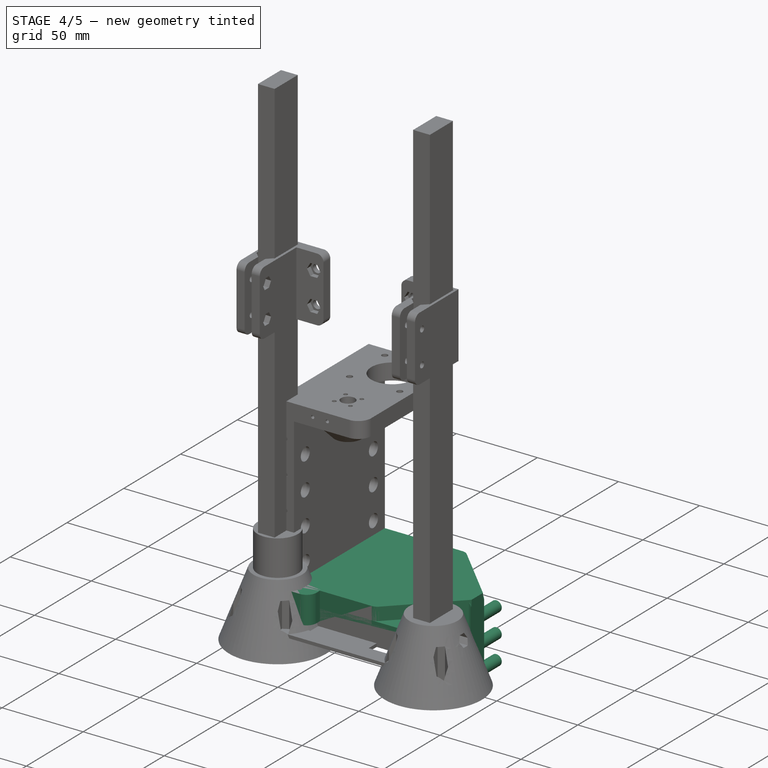
[diagram: stage 4 of 5 — iso view after this stage's code; geometry added in this stage tinted green]
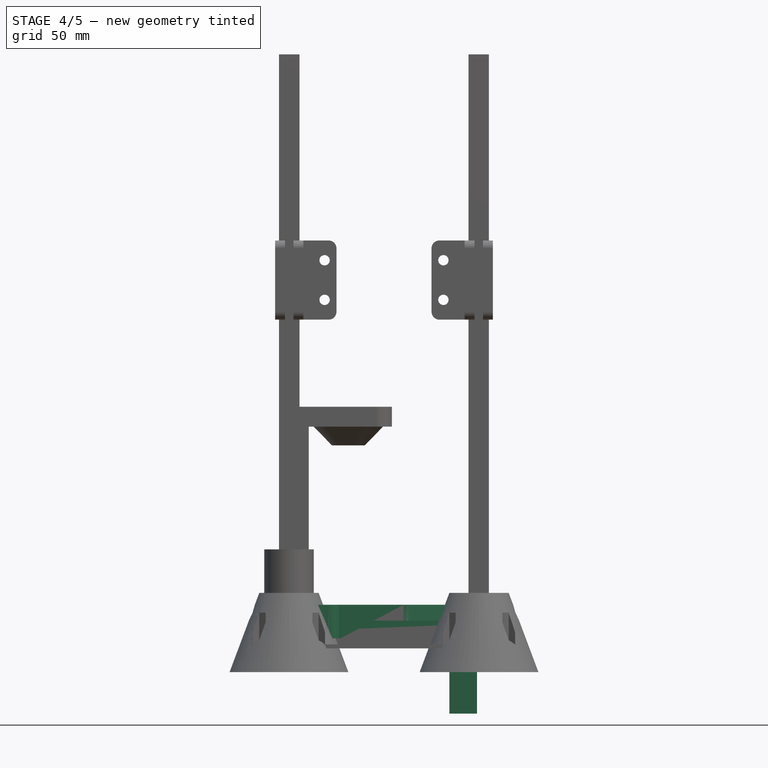
[diagram: stage 4 of 5 — front view after this stage's code; geometry added in this stage tinted green]
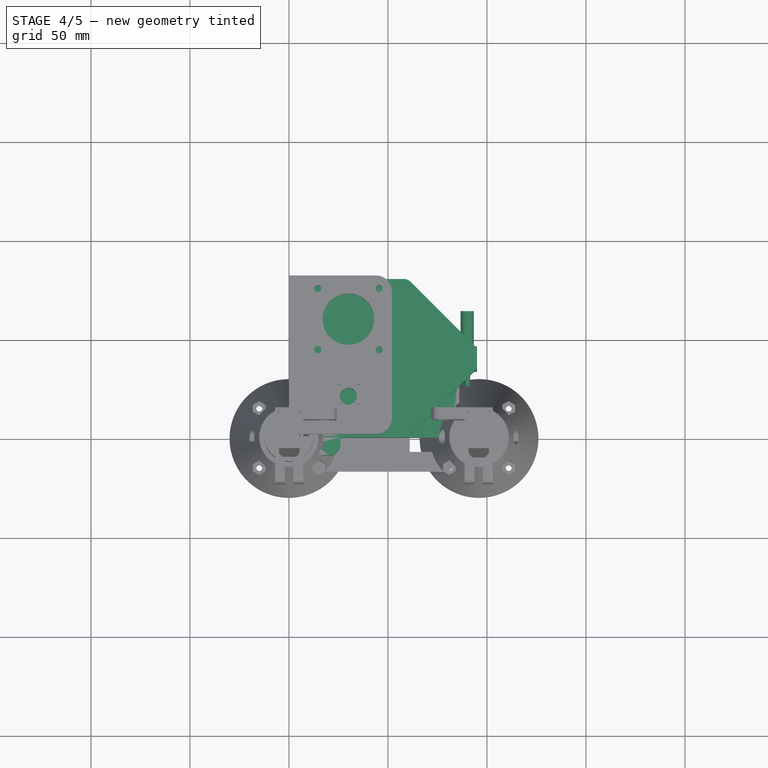
[diagram: stage 4 of 5 — top view after this stage's code; geometry added in this stage tinted green]
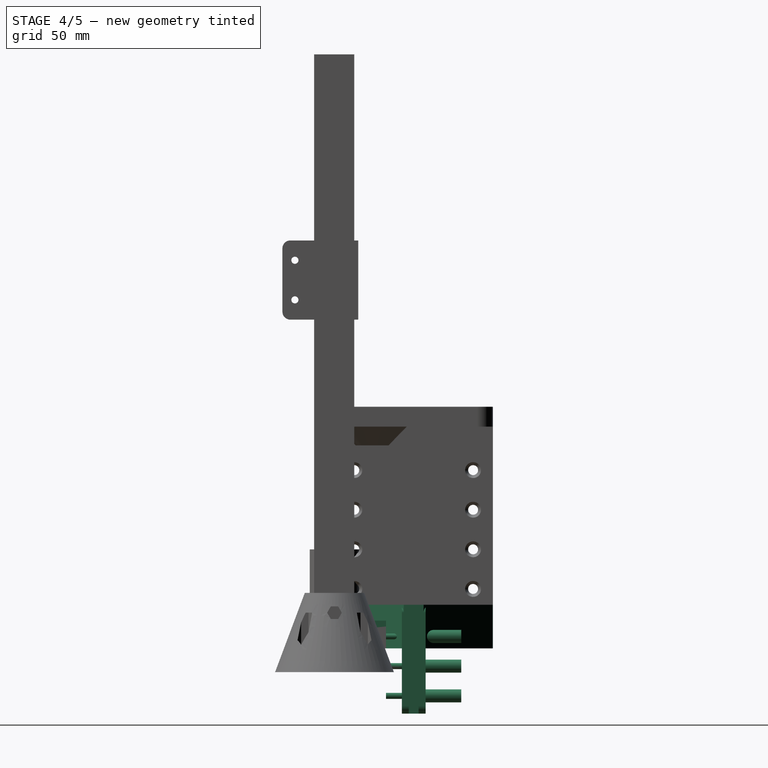
[diagram: stage 4 of 5 — right view after this stage's code; geometry added in this stage tinted green]
FEATURE [App::Part] Part002  label="stepper construction mockup"
  Group = -> [Pocket003Body001,Cylinder029,Cylinder027,Cylinder028,Cylinder024,Fusion006,Cylinder025,Array003,Cut002,Compound003,Cylinder009,Cylinder026,Cylinder013,Fusion005]
  Origin = -> Origin010
  Placement = pos=(9,0,17) rot=(0,0,1;0rad)
FEATURE [Part::Box] Box004  label="mblock middle"
  AttacherType = Attacher::AttachEngine3D
  Height = 22
  Length = 95
  Width = 80
  expr: Length = p.mblock_middle_length
  expr: Height = p.mblock_middle_height
  expr: Width = p.mblock_width
FEATURE [Part::Cylinder] Cylinder030  label="base disk"
  Angle = 360
  AttacherType = Attacher::AttachEngine3D
  Height = 5
  Radius = 16
FEATURE [Part::Cylinder] Cylinder031  label="lead hole"
  Angle = 360
  AttacherType = Attacher::AttachEngine3D
  Height = 6
  Radius = 4.5
FEATURE [Part::Chamfer] Chamfer  label="mblock middle chamfer"
  Base = -> Box004
  Edges = 2 edges r=35: [Edge5,Edge7]
FEATURE [Part::Box] Box005  label="top_attachment_connector"
  AttacherType = Attacher::AttachEngine3D
  Height = 55
  Length = 14
  Placement = pos=(81,34,-33) rot=(0,0,1;0rad)
  Width = 12
  expr: Placement.Base.y = (p.mblock_width - p.top_tube_attachment_width - 4 * p.wall) / 2
  expr: Placement.Base.x = p.mblock_middle_length - p.top_tube_attachment_length
  expr: Length = p.top_tube_attachment_length
  expr: Width = p.top_tube_attachment_width + 4 * p.wall
  expr: Placement.Base.z = p.mblock_middle_height - p.top_tube_attachment_height
  expr: Height = p.top_tube_attachment_height
FEATURE [Part::Cylinder] Cylinder033  label="attachment hole001"
  Angle = 360
  AttacherType = Attacher::AttachEngine3D
  Height = 8
  Placement = pos=(0,0,0) rot=(-1,0,0;1.5708rad)
  Radius = 1.8
  expr: Height = p.top_tube_attachment_width + 2 * p.wall
FEATURE [Part::Cylinder] Cylinder034  label="bolt head hole"
  Angle = 360
  AttacherType = Attacher::AttachEngine3D
  Height = 20
  Placement = pos=(0,8,0) rot=(-1,0,0;1.5708rad)
  Radius = 3.3
  expr: Placement.Base.y = p.top_tube_attachment_width + 2 * p.wall
FEATURE [Part::Box] Box006  label="top_attachment_connector_extract"
  AttacherType = Attacher::AttachEngine3D
  Height = 55
  Length = 14
  Placement = pos=(81,37.5,-33) rot=(0,0,1;0rad)
  Width = 5
  expr: Placement.Base.y = (p.mblock_width - p.top_tube_attachment_width - 1) / 2
  expr: Placement.Base.x = p.mblock_middle_length - p.top_tube_attachment_length
  expr: Length = p.top_tube_attachment_length
  expr: Width = p.top_tube_attachment_width + 1
  expr: Placement.Base.z = p.mblock_middle_height - p.top_tube_attachment_height
  expr: Height = p.top_tube_attachment_height
FEATURE [Part::Cylinder] Cylinder035  label="screwed hole"
  Angle = 360
  AttacherType = Attacher::AttachEngine3D
  Height = 10
  Placement = pos=(0,-10,0) rot=(-1,0,0;1.5708rad)
  Radius = 1.5
FEATURE [Part::MultiFuse] Fusion013  label="mblock connector hole fusion"
  Shapes = -> [Cylinder034,Cylinder033,Cylinder035]
FEATURE [Part::FeaturePython] Array001002  label="attachment hole array001"  # Draft array (typed FeaturePython)
  Angle = 360
  ArrayType = 0
  Axis = (0,0,1)
  Base = -> Fusion013
  Center = (0,0,0)
  Fuse = false
  IntervalAxis = (0,0,0)
  IntervalX = (1,0,0)
  IntervalY = (0,1,0)
  IntervalZ = (0,0,15)
  NumberPolar = 1
  NumberX = 1
  NumberY = 1
  NumberZ = 3
  Placement = pos=(90,36,-24) rot=(0,0,1;0rad)
  expr: Placement.Base.y = p.mblock_width / 2 - 2 * p.wall
  expr: Placement.Base.x = p.mblock_middle_length - p.top_tube_attachment_length / 2 + 2
FEATURE [Part::Fillet] Fillet005  label="mblock middle fillet"
  Base = -> Chamfer
  Edges = 4 edges r=5: [Edge11,Edge13,Edge17,Edge18]
FEATURE [Part::Fillet] Fillet006  label="top attachment connector fillet"
  Base = -> Box005
  Edges = 4 edges r=4: [Edge2,Edge4,Edge6,Edge8]
FEATURE [Part::Cylinder] Cylinder036  label="end body hole"
  Angle = 360
  AttacherType = Attacher::AttachEngine3D
  Height = 10
  Placement = pos=(-2,5.5,3) rot=(0,1,0;1.5708rad)
  Radius = 1.5
FEATURE [Part::FeaturePython] Array001016  label="end stop hole array"  # Draft array (typed FeaturePython)
  Angle = 360
  ArrayType = 0
  Axis = (0,0,1)
  Base = -> Cylinder036
  Center = (0,0,0)
  Fuse = false
  IntervalAxis = (0,0,0)
  IntervalX = (1,0,0)
  IntervalY = (0,9,0)
  IntervalZ = (0,0,1)
  NumberPolar = 1
  NumberX = 1
  NumberY = 2
  NumberZ = 1
FEATURE [Part::Box] Box016  label="end stop body cube"
  AttacherType = Attacher::AttachEngine3D
  Height = 10
  Length = 6
  Width = 20
FEATURE [Part::Box] Box017  label="end stop pushee cube"
  AttacherType = Attacher::AttachEngine3D
  Height = 2
  Length = 6
  Placement = pos=(0,8,10) rot=(0,0,1;0rad)
  Width = 2
FEATURE [Part::MultiFuse] Fusion014  label="end stop body fusion"
  Shapes = -> [Box017,Box016]
FEATURE [Part::Cut] Cut013  label="end stop cut"
  Base = -> Fusion014
  Tool = -> Array001016
FEATURE [App::Part] Part010  label="end stop mockup"
  Group = -> [Box016,Box017,Fusion014,Cylinder036,Array001016,Cut013]
  Origin = -> Origin012
FEATURE [PartDesign::FeatureBase] Clone001
  BaseFeature = -> Cut013
FEATURE [PartDesign::Body] Body002  label="bottom end stop clone"
  BaseFeature = -> Cut013
  Group = -> [Clone001]
  Origin = -> Origin013
  Placement = pos=(16,-4e-15,1) rot=(0,0,-1;1.5708rad)
  Tip = -> Clone001
FEATURE [PartDesign::FeatureBase] Clone002
  BaseFeature = -> Cut013
FEATURE [PartDesign::Body] Body003  label="top end stop clone"
  BaseFeature = -> Cut013
  Group = -> [Clone002]
  Origin = -> Origin014
  Placement = pos=(36,-8e-15,120.5) rot=(0.707107,-0.707107,0;3.14159rad)
  Tip = -> Clone002
FEATURE [Part::Cylinder] Cylinder038  label="lead nut attachment bolt hole"
  Angle = 360
  AttacherType = Attacher::AttachEngine3D
  Height = 20
  Placement = pos=(0,-8,-5) rot=(0,0,1;0rad)
  Radius = 1.8
FEATURE [Part::FeaturePython] Array001017  label="lead nut attachment bolt hole array"  # Draft array (typed FeaturePython)
  Angle = 360
  ArrayType = 1
  Axis = (0,0,1)
  Base = -> Cylinder038
  Center = (0,0,0)
  Fuse = false
  IntervalAxis = (0,0,0)
  IntervalX = (1,0,0)
  IntervalY = (0,1,0)
  IntervalZ = (0,0,1)
  NumberPolar = 4
  NumberX = 2
  NumberY = 2
  NumberZ = 1
FEATURE [Part::MultiFuse] Fusion009  label="hole fusion001"
  Shapes = -> [Cylinder031,Array001017]
FEATURE [PartDesign::Body] Body001  label="lean nut attachment clone"
  BaseFeature = -> Cut005
  Group = -> [Clone]
  Origin = -> Origin011
  Placement = pos=(17,58,17) rot=(0,0,1;0rad)
  Tip = -> Clone
  expr: Placement.Base.z = p.mblock_middle_height - 5
  expr: Placement.Base.y = p.lead_nut_center_offset_y
  expr: Placement.Base.x = p.lead_center_offset_x
FEATURE [Part::Box] Box018  label="mblock middle end stop pusher"
  AttacherType = Attacher::AttachEngine3D
  Height = 17
  Length = 20
  Width = 10
  expr: Height = p.mblock_middle_height - 5
FEATURE [Part::Cylinder] Cylinder039  label="mblock middle end stop pusher hole"
  Angle = 360
  AttacherType = Attacher::AttachEngine3D
  Height = 30
  Placement = pos=(10,5,0) rot=(0,0,1;0rad)
  Radius = 1.5
FEATURE [Part::Fillet] Fillet007  label="mblock middle end stop pusher fillet"
  Base = -> Box018
  Edges = 2 edges r=6: [Edge1,Edge5]
FEATURE [Part::Cut] Cut014  label="mblock middle end stop pusher cut"
  Base = -> Fillet007
  Placement = pos=(6,-9,5) rot=(0,0,1;0rad)
  Tool = -> Cylinder039
FEATURE [Part::MultiFuse] Fusion012  label="mblock middle plate fusion"
  Shapes = -> [Fillet005,Fillet006,Cut014]
FEATURE [App::Part] Part008  label="moving block part"
  Group = -> [Box001,Box002,Box003,Box004,Cylinder017,Cut006,Cylinder032,Fusion010,Body001,Fusion011,Chamfer,Box005,Fusion012,Array001002,Cylinder033,Cylinder034,Fusion013,Box006,Cylinder035,Fillet005,Fillet006,Body002,Body003,Box018,Cylinder039,Cut014,Fillet007,Array001018,Cylinder040,Body004,Body005,Cut015,Cut016,Cylinder041,Cylinder042,Fusion015,Cylinder043,Array001003,Cylinder044,Cone,Part__Mirroring,+21 more]
  Origin = -> Origin009
FEATURE [Part::Box] Box019  label="microslider holder main"
  AttacherType = Attacher::AttachEngine3D
  Height = 5.2
  Length = 62
  Width = 32
  expr: Height = p.microslider_height + 2 * p.wall
  expr: Width = p.mh_width
  expr: Length = p.mh_length
FEATURE [Part::Box] Box020  label="microslider holder centre"
  AttacherType = Attacher::AttachEngine3D
  Height = 20
  Length = 52
  Placement = pos=(5,0,-10) rot=(0,0,1;0rad)
  Width = 22
  expr: Length = p.microslider_length - 20
  expr: Width = p.microslider_width
FEATURE [Part::Box] Box021  label="micro slider cube"
  AttacherType = Attacher::AttachEngine3D
  Height = 1.2
  Length = 72
  Width = 22
  expr: Height = p.microslider_height
  expr: Width = p.microslider_width
  expr: Length = p.microslider_length
FEATURE [App::Part] Part012  label="micro slider mockup"
  Group = -> [Box021]
  Origin = -> Origin018
FEATURE [Part::Box] Box022  label="microslider holder height centre"
  AttacherType = Attacher::AttachEngine3D
  Height = 1.4
  Length = 122
  Placement = pos=(-25,0,2) rot=(0,0,1;0rad)
  Width = 23
  expr: Placement.Base.z = p.wall
  expr: Height = p.microslider_height + 0.2
  expr: Length = p.microslider_length + 50
  expr: Width = p.microslider_width + 1
FEATURE [Part::MultiFuse] Fusion033  label="microslider cut fusion"
  Shapes = -> [Box020,Box022]
FEATURE [Part::Cut] Cut019  label="microslider holder cut"
  Base = -> Box019
  Tool = -> Fusion033
FEATURE [Part::Fillet] Fillet010  label="microslider holder cut fillet"
  Base = -> Cut019
  Edges = 18 edges r=0.7: [Edge1,Edge5,Edge7,Edge9,Edge10,Edge11,Edge14,Edge21,Edge25,Edge26,Edge27,Edge30,Edge35,Edge37,Edge42,Edge43,Edge44,Edge46]
FEATURE [Part::Cylinder] Cylinder051  label="bolt hole001"
  Angle = 360
  AttacherType = Attacher::AttachEngine3D
  Height = 20
  Placement = pos=(10,27,-5) rot=(0,0,1;0rad)
  Radius = 1.8
  expr: Placement.Base.x = (p.mh_length - p.mh_bolt_hole_dist) / 2
  expr: Placement.Base.y = p.microslider_width + 5
FEATURE [Part::FeaturePython] Array001022  label="microslider bolt hole array"  # Draft array (typed FeaturePython)
  Angle = 360
  ArrayType = 0
  Axis = (0,0,1)
  Base = -> Cylinder051
  Center = (0,0,0)
  Fuse = false
  IntervalAxis = (0,0,0)
  IntervalX = (42,0,0)
  IntervalY = (0,1,0)
  IntervalZ = (0,0,1)
  NumberPolar = 1
  NumberX = 2
  NumberY = 1
  NumberZ = 1
  expr: IntervalX.x = p.mh_bolt_hole_dist
FEATURE [Part::Cut] Cut020  label="microslide holder bolted cut"
  Base = -> Fillet010
  Tool = -> Array001022
FEATURE [Part::Cylinder] Cylinder052  label="bolt hole002"
  Angle = 360
  AttacherType = Attacher::AttachEngine3D
  Height = 20
  Placement = pos=(22,29,-5) rot=(0,0,1;0rad)
  Radius = 1.5
  expr: Placement.Base.x = (p.msub_length - p.mh_bolt_hole_dist) / 2
  expr: Placement.Base.y = p.msub_width - p.wall - 5
FEATURE [Part::FeaturePython] Array001023  label="microslider bolt hole array001"  # Draft array (typed FeaturePython)
  Angle = 360
  ArrayType = 0
  Axis = (0,0,1)
  Base = -> Cylinder052
  Center = (0,0,0)
  Fuse = false
  IntervalAxis = (0,0,0)
  IntervalX = (42,0,0)
  IntervalY = (0,1,0)
  IntervalZ = (0,0,1)
  NumberPolar = 1
  NumberX = 2
  NumberY = 1
  NumberZ = 1
  expr: IntervalX.x = p.mh_bolt_hole_dist
FEATURE [Part::Box] Box024  label="msub top hole"
  AttacherType = Attacher::AttachEngine3D
  Height = 10
  Length = 30
  Placement = pos=(28,3,-5) rot=(0,0,1;0rad)
  Width = 20
  expr: Length = p.mh_hole_length
  expr: Placement.Base.y = p.wall + 1
  expr: Placement.Base.x = (p.msub_length - p.mh_hole_length) / 2
  expr: Width = p.mh_hole_width
FEATURE [Part::Box] Box025  label="wall cube"
  AttacherType = Attacher::AttachEngine3D
  Height = 12
  Length = 86
  Width = 36
  expr: Height = p.msub_height
  expr: Width = p.msub_width
  expr: Length = p.msub_length
FEATURE [Part::Box] Box026  label="extraction cube"
  AttacherType = Attacher::AttachEngine3D
  Height = 12
  Length = 82
  Placement = pos=(2,2,0) rot=(0,0,1;0rad)
  Width = 32
  expr: Placement.Base.y = p.wall
  expr: Placement.Base.x = p.wall
  expr: Height = p.msub_height
  expr: Width = p.msub_width - 2 * p.wall
  expr: Length = p.msub_length - 2 * p.wall
FEATURE [Part::Cut] Cut022  label="msub box cut"
  Base = -> Box025
  Tool = -> Box026
FEATURE [Part::Cylinder] Cylinder053  label="msub bolt cylinder"
  Angle = 360
  AttacherType = Attacher::AttachEngine3D
  Height = 12
  Placement = pos=(5,5,0) rot=(0,0,1;0rad)
  Radius = 4
  expr: Height = p.msub_height
  expr: Radius = 2 + p.wall
FEATURE [Part::FeaturePython] Array001024  label="msub bolt cylinder array"  # Draft array (typed FeaturePython)
  Angle = 360
  ArrayType = 0
  Axis = (0,0,1)
  Base = -> Cylinder053
  Center = (0,0,0)
  Fuse = false
  IntervalAxis = (0,0,0)
  IntervalX = (76,0,0)
  IntervalY = (0,26,0)
  IntervalZ = (0,0,1)
  NumberPolar = 1
  NumberX = 2
  NumberY = 2
  NumberZ = 1
  expr: IntervalX.x = p.msub_length - 10
  expr: IntervalY.y = p.msub_width - 10
FEATURE [Part::Cylinder] Cylinder054  label="msub bolt hole"
  Angle = 360
  AttacherType = Attacher::AttachEngine3D
  Height = 12
  Placement = pos=(5,5,0) rot=(0,0,1;0rad)
  Radius = 1.5
  expr: Height = p.msub_height
FEATURE [Part::FeaturePython] Array001025  label="msub bolt hole array"  # Draft array (typed FeaturePython)
  Angle = 360
  ArrayType = 0
  Axis = (0,0,1)
  Base = -> Cylinder054
  Center = (0,0,0)
  Fuse = false
  IntervalAxis = (0,0,0)
  IntervalX = (76,0,0)
  IntervalY = (0,26,0)
  IntervalZ = (0,0,1)
  NumberPolar = 1
  NumberX = 2
  NumberY = 2
  NumberZ = 1
  expr: IntervalX.x = p.msub_length - 10
  expr: IntervalY.y = p.msub_width - 10
FEATURE [Part::Cut] Cut023002  label="msub top cut copy"
  Base = -> Box027
  Placement = pos=(0,0,6.5) rot=(0,0,1;0rad)
  Tool = -> Box028
  expr: Placement.Base.z = p.msub_height - 3.5 - p.wall
FEATURE [Part::MultiFuse] Fusion035  label="msub fusion"
  Shapes = -> [Array001024,Cut022,Cut023002]
FEATURE [Part::Cut] Cut023  label="msub middle cut"
  Base = -> Fusion035
  Tool = -> Array001025
FEATURE [Part::MultiFuse] Fusion034  label="msub top hole fusion"
  Shapes = -> [Box024,Array001023,Array001028]
FEATURE [Part::Cut] Cut021  label="msub top cut"
  Base = -> Fusion038
  Placement = pos=(0,0,12) rot=(0,0,1;0rad)
  Tool = -> Fusion034
FEATURE [Part::Feature] Cut023003  label="msub middle cut001"
  shape: bbox 86 x 36 x 12 mm, 64 faces (baked)
FEATURE [Part::Fillet] Fillet011  label="msub middle cut refined fillet"
  Base = -> Cut023003
  Edges = 4 edges r=3: [Edge117,Edge119,Edge120,Edge123]
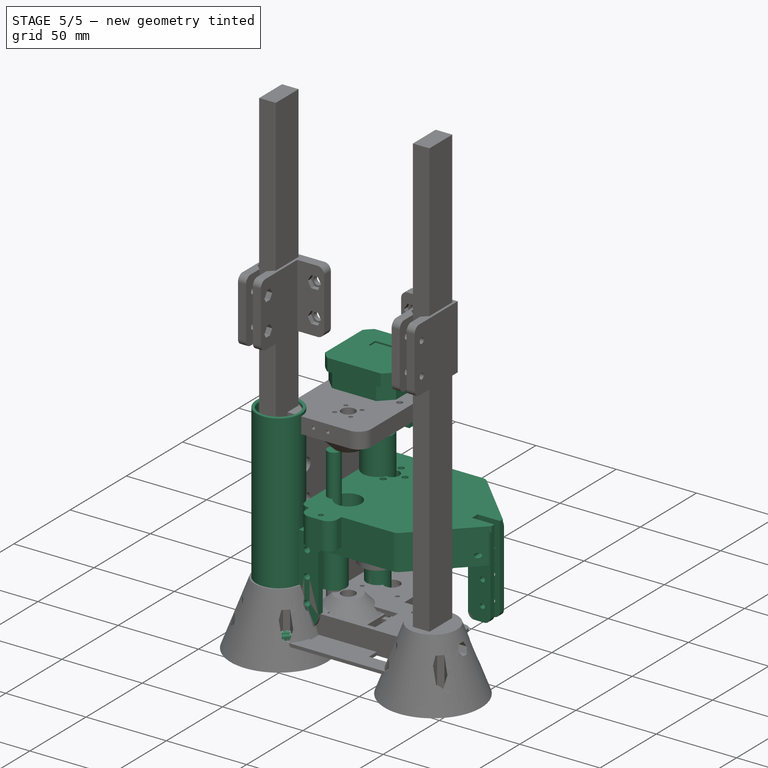
[diagram: stage 5 of 5 — iso view after this stage's code; geometry added in this stage tinted green]
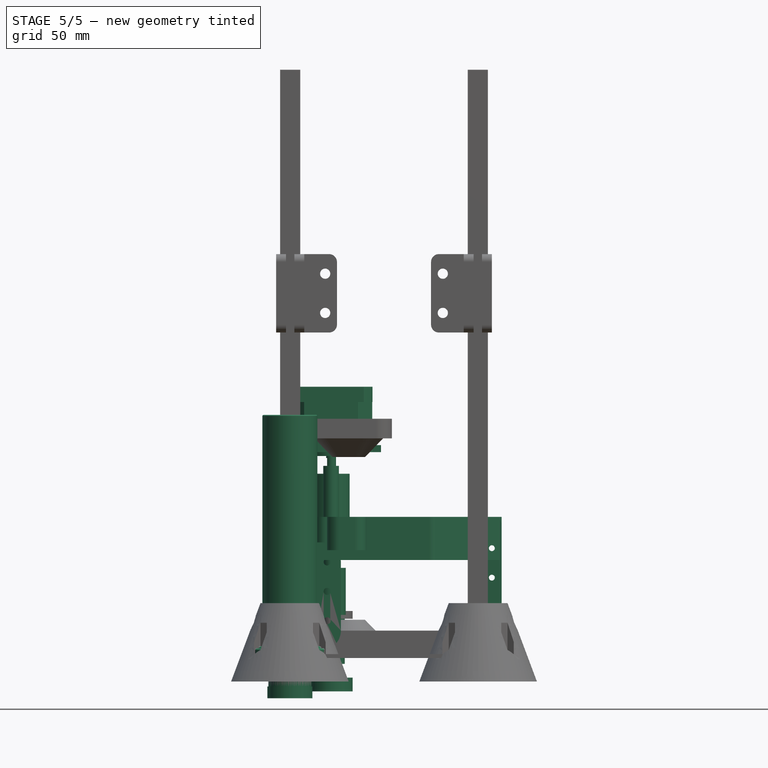
[diagram: stage 5 of 5 — front view after this stage's code; geometry added in this stage tinted green]
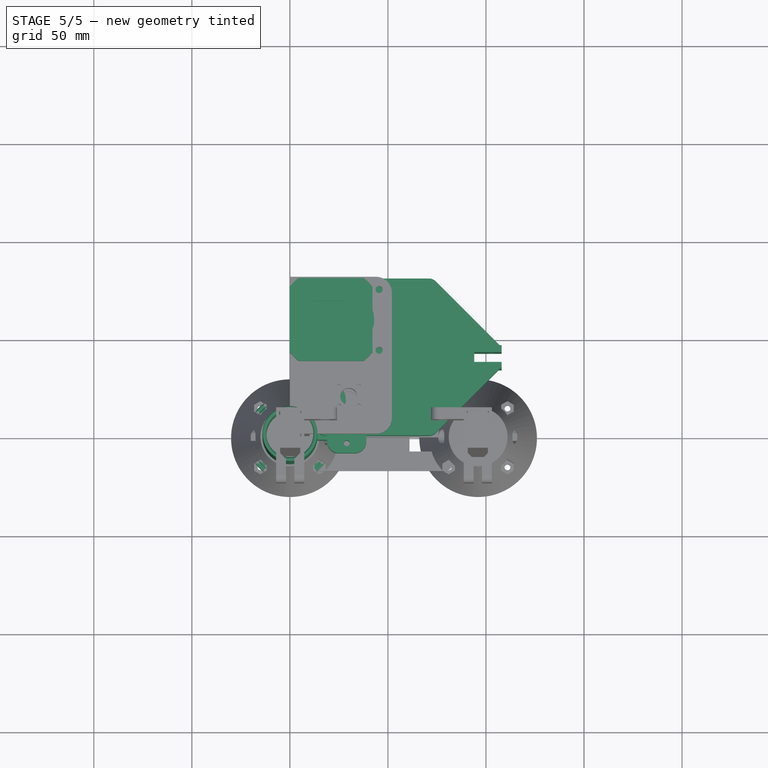
[diagram: stage 5 of 5 — top view after this stage's code; geometry added in this stage tinted green]
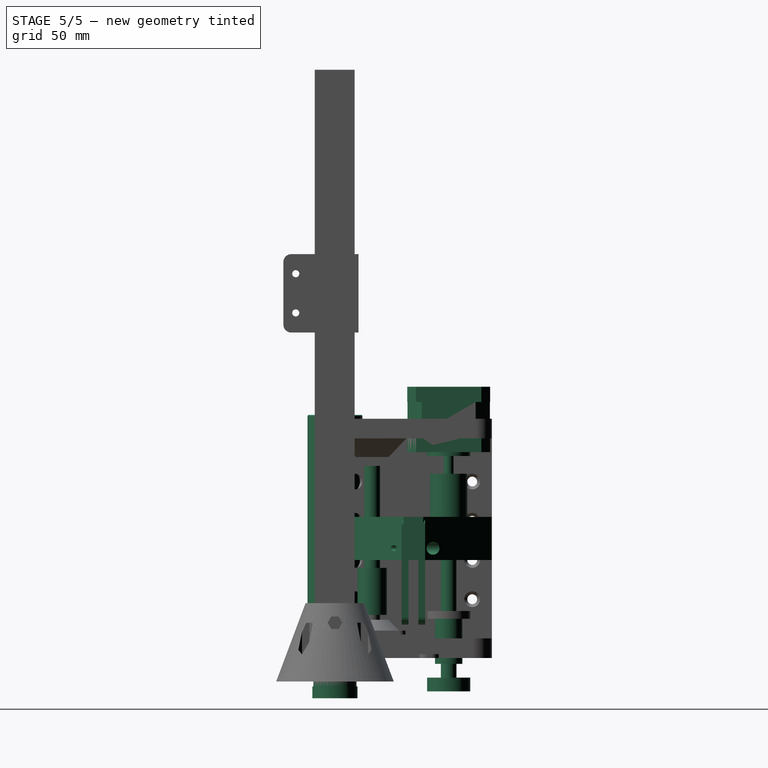
[diagram: stage 5 of 5 — right view after this stage's code; geometry added in this stage tinted green]
FEATURE [Part::Cylinder] Cylinder  label="middle cylinder"
  Angle = 360
  AttacherType = Attacher::AttachEngine3D
  Height = 4
  Radius = 11.25
FEATURE [Part::Cylinder] Cylinder001  label="top cylinder"
  Angle = 360
  AttacherType = Attacher::AttachEngine3D
  Height = 3
  Placement = pos=(0,0,3) rot=(0,0,1;0rad)
  Radius = 11.5
FEATURE [Part::Cylinder] Cylinder002  label="middle bottom cylinder"
  Angle = 360
  AttacherType = Attacher::AttachEngine3D
  Height = 7
  Placement = pos=(0,0,-7) rot=(0,0,1;0rad)
  Radius = 12
FEATURE [Part::Cylinder] Cylinder003  label="bottom cylinder"
  Angle = 360
  AttacherType = Attacher::AttachEngine3D
  Height = 13
  Placement = pos=(0,0,-20) rot=(0,0,1;0rad)
  Radius = 9.5
FEATURE [Part::Cylinder] Cylinder004  label="eyepiece bottom cylinder"
  Angle = 360
  AttacherType = Attacher::AttachEngine3D
  Height = 6
  Placement = pos=(0,0,-20.5) rot=(0,0,1;0rad)
  Radius = 11.5
FEATURE [Part::Cylinder] Cylinder005  label="eyepiece top cylinder"
  Angle = 360
  AttacherType = Attacher::AttachEngine3D
  Height = 28
  Radius = 13
FEATURE [Part::Cylinder] Cylinder006  label="eyepiece middle extract bottom"
  Angle = 360
  AttacherType = Attacher::AttachEngine3D
  Height = 3.5
  Placement = pos=(0,0,-14.5) rot=(0,0,1;0rad)
  Radius = 11
FEATURE [Part::Cylinder] Cylinder007  label="eyepiece middle cylinder"
  Angle = 360
  AttacherType = Attacher::AttachEngine3D
  Height = 11
  Placement = pos=(0,0,-11) rot=(0,0,1;0rad)
  Radius = 11.5
FEATURE [Spreadsheet::Sheet] Spreadsheet  label="p"
  cells = A1=bottom_holder_hole_radius; B1(bottom_holder_hole_radius)=10; A2=bottom_holder_radius; B2(bottom_holder_radius)=20; A3=bottom_holder_bottom_wall; B3(bottom_holder_bottom_wall)=8; A4=bottom_holder_height; B4(bottom_holder_height)=6; A5=bottom_holder_extract_radius; B5(bottom_holder_extract_radius)=13; A6=bottom_holder_outer_wall; B6(bottom_holder_outer_wall)==p.bottom_holder_radius - p.bottom_holder_extract_radius; A7=eyepiece_r; B7(eyepiece_r)=12; A8=eyepiece_height; B8(eyepiece_height)=21; A9=eyepiece_top_r; B9(eyepiece_top_r)=13; A10=top_tube_wall; B10(top_tube_wall)=2; A11=top_tube_height; B11(top_tube_height)=124; A12=top_tube_attachment_height; B12(top_tube_attachment_height)=55; A13=top_tube_attachment_width; B13(top_tube_attachment_width)=4; A14=top_tube_attachment_length; B14(top_tube_attachment_length)=14; A15=bottom_connector_radius; B15(bottom_connector_radius)==bottom_holder_radius + 2; A16=bottom_connector_height; B16(bottom_connector_height)=5; A17=mblock_wall_height; B17(mblock_wall_height)=112; A18=mblock_wall_length; B18(mblock_wall_length)=10; A19=mblock_width; B19(mblock_width)=80; A20=mblock_top_height; B20(mblock_top_height)=10; A21=mblock_top_length; B21(mblock_top_length)=52; A22=mblock_bottom_height; B22(mblock_bottom_height)=10; A23=mblock_bottom_length; B23(mblock_bottom_length)=48; A24=mblock_middle_height; B24(mblock_middle_height)=22; A25=mblock_middle_length; B25(mblock_middle_length)=95; A26=motor_hole_r; B26(motor_hole_r)=13; A27=motor_attach_hole_dist; B27(motor_attach_hole_dist)=31; A28=dc_motor_hole_dist; B28(dc_motor_hole_dist)=29; A29=rod_hole_r; B29(rod_hole_r)=4.3; A30=rod_bearing_hole; B30(rod_bearing_hole)=8; A31=lead_hole_r; B31(lead_hole_r)=4.8; A32=lead_bearing_hole; B32(lead_bearing_hole)=11.3; A33=lead_nut_center_offset_y; B33(lead_nut_center_offset_y)=58; A34=rod_center_offset_y; B34(rod_center_offset_y)=19; A35=lead_center_offset_x; B35(lead_center_offset_x)=17; A36=wall; B36(wall)=2; A37=m3_nut_spacing; B37(m3_nut_spacing)=2; A38=m3_nut_circumradius; B38(m3_nut_circumradius)=3.7; A39=m4_nut_circumradius; B39(m4_nut_circumradius)=4.2; A40=microslider_length; B40(microslider_length)=72; A41=microslider_height; B41(microslider_height)=1.2; A42=microslider_width; B42(microslider_width)=22; A43=mh_hole_length; B43(mh_hole_length)=30; A44=mh_hole_width; B44(mh_hole_width)=20; A45=mh_bolt_hole_dist; B45(mh_bolt_hole_dist)==p.microslider_length - 30; A46=mh_length; B46(mh_length)==p.microslider_length - 10; A47=mh_width; B47(mh_width)==p.microslider_width + 10; A48=msub_length; B48(msub_length)==p.microslider_length + 10 + 2 * p.wall; A49=msub_width; B49(msub_width)==p.microslider_width + 10 + 2 * p.wall; A50=msub_height; B50(msub_height)=12; A51=led_r; B51(led_r)=1.8; A52=cube_profile_width; B52(cube_profile_width)=10.3; A53=cube_profile_length; B53(cube_profile_length)=20.3; A54=cube_profile_attachment_height; B54(cube_profile_attachment_height)=40
FEATURE [Part::Compound] Compound  label="eyepiece compound"
  Links = -> [Cylinder005,Cylinder007,Cylinder006,Cylinder004]
FEATURE [App::Part] Part001  label="eyepieace part"
  Group = -> [Cylinder005,Cylinder007,Cylinder006,Cylinder004,Compound]
  Origin = -> Origin001
  Placement = pos=(1,51,1) rot=(1,0,0;4.71239rad)
FEATURE [Part::Compound] Compound001  label="lens mockup compound"
  Links = -> [Cylinder,Cylinder001,Cylinder002,Cylinder003]
FEATURE [App::Part] Part  label="lens mockup part"
  Group = -> [Cylinder,Cylinder001,Cylinder002,Cylinder003,Compound001]
  Origin = -> Origin
  Placement = pos=(1,-95,1) rot=(1,0,0;4.71239rad)
FEATURE [Part::Cylinder] Cylinder014  label="bottom holder hole001"
  Angle = 360
  AttacherType = Attacher::AttachEngine3D
  Height = 6
  Radius = 10
  expr: Height = p.bottom_holder_height
  expr: Radius = p.bottom_holder_hole_radius
FEATURE [Part::Cylinder] Cylinder018  label="bottom holder v003"
  Angle = 360
  AttacherType = Attacher::AttachEngine3D
  Height = 6
  Radius = 20
  expr: Height = p.bottom_holder_height
  expr: Radius = p.bottom_holder_radius
FEATURE [Part::Cylinder] Cylinder019  label="bolt hole"
  Angle = 360
  AttacherType = Attacher::AttachEngine3D
  Height = 10
  Radius = 1.5
FEATURE [Part::FeaturePython] Array  label="bolt hole array"  # Draft array (typed FeaturePython)
  Angle = 360
  ArrayType = 0
  Axis = (0,0,1)
  Base = -> Cylinder019
  Center = (0,0,0)
  Fuse = false
  IntervalAxis = (0,0,0)
  IntervalX = (24,0,0)
  IntervalY = (0,24,0)
  IntervalZ = (0,0,1)
  NumberPolar = 1
  NumberX = 2
  NumberY = 2
  NumberZ = 1
  Placement = pos=(-12,-12,0) rot=(0,0,1;0rad)
FEATURE [Part::MultiFuse] Fusion003  label="hole fusion"
  Shapes = -> [Cylinder014,Array]
FEATURE [Part::Cut] Cut003  label="bottom holder cut002"
  Base = -> Cylinder018
  Tool = -> Fusion003
FEATURE [Part::Fillet] Fillet
  Base = -> Cut003
  Edges = 3 edges r=1: [Edge1,Edge3,Edge6]
FEATURE [App::Part] Part006  label="bottom holder v3 part"
  Group = -> [Cylinder019,Cylinder018,Fusion003,Cylinder014,Array,Cut003,Fillet]
  Origin = -> Origin006
  Placement = pos=(0,0,-6) rot=(0,0,1;0rad)
FEATURE [Part::Cylinder] Cylinder020  label="top tube"
  Angle = 360
  AttacherType = Attacher::AttachEngine3D
  Height = 124
  Radius = 14
  expr: Height = p.top_tube_height
  expr: Radius = p.eyepiece_r + p.top_tube_wall
FEATURE [Part::Cylinder] Cylinder021  label="top tube hole"
  Angle = 360
  AttacherType = Attacher::AttachEngine3D
  Height = 124
  Radius = 12
  expr: Height = p.top_tube_height
  expr: Radius = p.eyepiece_r
FEATURE [Part::Cylinder] Cylinder022  label="top_bottom_connector"
  Angle = 360
  AttacherType = Attacher::AttachEngine3D
  Height = 5
  Radius = 22
  expr: Height = p.bottom_connector_height
  expr: Radius = p.bottom_connector_radius
FEATURE [Sketcher::SketchObject] Sketch
  MapMode = 5
  Support = -> [XY_Plane006]
  sketch-geometry (4):
    g0: ArcOfCircle CenterX=0 CenterY=0 CenterZ=0 NormalX=0 NormalY=0 NormalZ=1 AngleXU=0 Radius=18.8 StartAngle=3.356 EndAngle=4.49798
    g1: ArcOfCircle CenterX=-16.5169 CenterY=-4 CenterZ=0 NormalX=0 NormalY=0 NormalZ=1 AngleXU=0 Radius=1.85265 StartAngle=1e-16 EndAngle=3.14159
    g2: ArcOfCircle CenterX=-4 CenterY=-16.5169 CenterZ=0 NormalX=0 NormalY=0 NormalZ=1 AngleXU=0 Radius=1.85265 StartAngle=4.71239 EndAngle=7.85398
    g3: ArcOfCircle CenterX=0 CenterY=0 CenterZ=0 NormalX=0 NormalY=0 NormalZ=1 AngleXU=0 Radius=15.2 StartAngle=3.40789 EndAngle=4.44609
  constraints (14):
    c: Coincident(g0,g-1)
    c: DistanceY(g0,g0) = 4
    c: DistanceX(g0,g0) = 4
    c: Coincident(g3,g0)
    c: Coincident(g3,g2)
    c: Coincident(g0,g1)
    c: Coincident(g0,g2)
    c: DistanceY(g1,g0) = 4
    c: DistanceX(g2,g0) = 4
    c: Radius(g3) = 15.2
    c: Radius(g0) = 18.8
    c: Coincident(g1,g3)
    c: DistanceX(g2,g2) = 0
    c: DistanceY(g1,g1) = 0
FEATURE [PartDesign::Pad] Pad
  Length = 10
  Length2 = 100
  Profile = -> Sketch
  Type = 0
FEATURE [PartDesign::Body] Body  label="long hole body"
  Group = -> [Sketch,Pad]
  Origin = -> Origin008
  Tip = -> Pad
FEATURE [Part::FeaturePython] Array001  label="long hole array"  # Draft array (typed FeaturePython)
  Angle = 360
  ArrayType = 1
  Axis = (0,0,1)
  Base = -> Body
  Center = (0,0,0)
  Fuse = false
  IntervalAxis = (0,0,0)
  IntervalX = (1,0,0)
  IntervalY = (0,1,0)
  IntervalZ = (0,0,1)
  NumberPolar = 4
  NumberX = 2
  NumberY = 2
  NumberZ = 1
FEATURE [Part::MultiFuse] Fusion004  label="top hole fusion"
  Shapes = -> [Cylinder021,Array001]
FEATURE [Part::Fillet] Fillet001  label="top tube fillet"
  Base = -> Cylinder020
  Edges = 1 edges r=0.6: [Edge1]
FEATURE [Part::Box] Box  label="attachment cube"
  AttacherType = Attacher::AttachEngine3D
  Height = 55
  Length = 14
  Placement = pos=(12,-2,0) rot=(0,0,1;0rad)
  Width = 4
  expr: Placement.Base.x = p.eyepiece_r
  expr: Placement.Base.y = -p.top_tube_attachment_width / 2
  expr: Height = p.top_tube_attachment_height
  expr: Width = p.top_tube_attachment_width
  expr: Length = p.top_tube_attachment_length
FEATURE [Part::Fillet] Fillet003  label="attachment fillet"
  Base = -> Box
  Edges = 2 edges r=10: [Edge6,Edge8]
FEATURE [Part::Cylinder] Cylinder023  label="attachment hole"
  Angle = 360
  AttacherType = Attacher::AttachEngine3D
  Height = 40
  Placement = pos=(19,-20,0) rot=(-1,0,0;1.5708rad)
  Radius = 1.8
  expr: Placement.Base.x = p.eyepiece_r + p.top_tube_attachment_length / 2
FEATURE [Part::FeaturePython] Array002  label="attachment hole array"  # Draft array (typed FeaturePython)
  Angle = 360
  ArrayType = 0
  Axis = (0,0,1)
  Base = -> Cylinder023
  Center = (0,0,0)
  Fuse = false
  IntervalAxis = (0,0,0)
  IntervalX = (1,0,0)
  IntervalY = (0,1,0)
  IntervalZ = (0,0,15)
  NumberPolar = 1
  NumberX = 1
  NumberY = 1
  NumberZ = 3
  Placement = pos=(0,0,15) rot=(0,0,1;0rad)
FEATURE [Part::Cut] Cut004  label="attachment cut"
  Base = -> Fillet003
  Placement = pos=(0,0,4) rot=(0,0,1;0rad)
  Tool = -> Array002
  expr: Placement.Base.z = p.bottom_connector_height - 1
FEATURE [Part::Fillet] Fillet004  label="top bottom connector fillet"
  Base = -> Cylinder022
  Edges = 2 edges r=1: [Edge1,Edge3]
FEATURE [Part::MultiFuse] Fusion  label="top tube fusion"
  Shapes = -> [Fillet001,Fillet004]
FEATURE [Part::Cut] Cut  label="top tube cut"
  Base = -> Fusion
  Tool = -> Fusion004
FEATURE [Part::Fillet] Fillet002  label="top tube cut fillet"
  Base = -> Cut
  Edges = 1 edges r=1: [Edge20]
FEATURE [Part::Compound] Compound002  label="top compount"
  Links = -> [Cut004,Fillet002]
FEATURE [Part::Cylinder] Cylinder024  label="backlash nut disk"
  Angle = 360
  AttacherType = Attacher::AttachEngine3D
  Height = 4
  Radius = 11
FEATURE [Part::Cylinder] Cylinder025  label="Cylinder028"
  Angle = 360
  AttacherType = Attacher::AttachEngine3D
  Height = 20
  Placement = pos=(0,-8,-5) rot=(0,0,1;0rad)
  Radius = 1.5
FEATURE [Part::FeaturePython] Array003  # Draft array (typed FeaturePython)
  Angle = 360
  ArrayType = 1
  Axis = (0,0,1)
  Base = -> Cylinder025
  Center = (0,0,0)
  Fuse = false
  IntervalAxis = (0,0,0)
  IntervalX = (1,0,0)
  IntervalY = (0,1,0)
  IntervalZ = (0,0,1)
  NumberPolar = 4
  NumberX = 2
  NumberY = 2
  NumberZ = 1
FEATURE [Part::Cylinder] Cylinder026  label="rod cylinder"
  Angle = 360
  AttacherType = Attacher::AttachEngine3D
  Height = 100
  Placement = pos=(42,0,-118) rot=(0,0,1;0rad)
  Radius = 4
FEATURE [Part::Cylinder] Cylinder009  label="bearing"
  Angle = 360
  AttacherType = Attacher::AttachEngine3D
  Height = 7
  Placement = pos=(100,40,-22) rot=(0,0,1;0rad)
  Radius = 11
FEATURE [Part::Cylinder] Cylinder013  label="rod bearing cylinder"
  Angle = 360
  AttacherType = Attacher::AttachEngine3D
  Height = 24
  Placement = pos=(42,0,-94) rot=(0,0,1;0rad)
  Radius = 7.5
FEATURE [Part::Cylinder] Cylinder027  label="lead cylinder"
  Angle = 360
  AttacherType = Attacher::AttachEngine3D
  Height = 100
  Placement = pos=(100,40,-22) rot=(0,0,1;0rad)
  Radius = 4
FEATURE [Part::Cylinder] Cylinder028  label="backlash nut cylinder"
  Angle = 360
  AttacherType = Attacher::AttachEngine3D
  Height = 23
  Placement = pos=(0,0,-23) rot=(0,0,1;0rad)
  Radius = 7
FEATURE [Part::Cut] Cut002
  Base = -> Cylinder024
  Tool = -> Array003
FEATURE [Part::MultiFuse] Fusion005  label="rod fusion"
  Placement = pos=(59,19,111) rot=(0,0,1;0rad)
  Shapes = -> [Cylinder013,Cylinder026]
FEATURE [Part::Cylinder] Cylinder029  label="motor lead cylinder"
  Angle = 360
  AttacherType = Attacher::AttachEngine3D
  Height = 25
  Placement = pos=(100,40,64) rot=(0,0,1;0rad)
  Radius = 9.5
FEATURE [Part::MultiFuse] Fusion006  label="backlash nut union"
  Placement = pos=(100,40,15) rot=(0,0,1;0rad)
  Shapes = -> [Cut002,Cylinder028]
FEATURE [Part::Feature] Pocket003Body001  label="StepperBody"
  Placement = pos=(100,40,100) rot=(0,0,1;0rad)
  shape: bbox 46.6 x 42.3 x 53.35 mm, 70 faces (baked)
FEATURE [Part::MultiFuse] Fusion008  label="motor complex"
  Placement = pos=(1,18,0) rot=(0,0,1;0rad)
  Shapes = -> [Pocket003Body001,Cylinder029,Cylinder027,Cylinder009,Fusion006]
FEATURE [Part::Compound] Compound003
  Links = -> [Fusion008,Fusion005]
  Placement = pos=(-80,0,5) rot=(0,0,1;0rad)
FEATURE [Part::Cylinder] Cylinder017  label="rod bearing hole"
  Angle = 360
  AttacherType = Attacher::AttachEngine3D
  Height = 24
  Placement = pos=(17,19,0) rot=(0,0,1;0rad)
  Radius = 8
  expr: Radius = p.rod_bearing_hole
  expr: Placement.Base.y = p.rod_center_offset_y
  expr: Placement.Base.x = p.lead_center_offset_x
FEATURE [Part::Cylinder] Cylinder032  label="backlash nut disk hole"
  Angle = 360
  AttacherType = Attacher::AttachEngine3D
  Height = 30
  Placement = pos=(17,58,-5) rot=(0,0,1;0rad)
  Radius = 14.5
  expr: Placement.Base.y = p.lead_nut_center_offset_y
  expr: Placement.Base.x = p.lead_center_offset_x
FEATURE [Part::MultiFuse] Fusion010  label="mblock middle hole fusion"
  Shapes = -> [Cylinder017,Cylinder032,Array001002,Box006]
FEATURE [Part::Cut] Cut005  label="lead nut attachment cut"
  Base = -> Cylinder030
  Tool = -> Fusion009
FEATURE [App::Part] Part009  label="lead nut attachment part"
  Group = -> [Fusion009,Cylinder030,Cylinder031,Array001017,Cylinder038,Cut005]
  Origin = -> Origin002
FEATURE [PartDesign::FeatureBase] Clone
  BaseFeature = -> Cut005
FEATURE [Part::Cut] Cut006  label="mblock middle cut"
  Base = -> Fusion012
  Tool = -> Fusion010
FEATURE [Part::MultiFuse] Fusion011  label="mblock middle fusion"
  Placement = pos=(13,0,50) rot=(0,0,1;0rad)
  Shapes = -> [Cut006,Body001]
  expr: Placement.Base.x = p.mblock_wall_length + 3
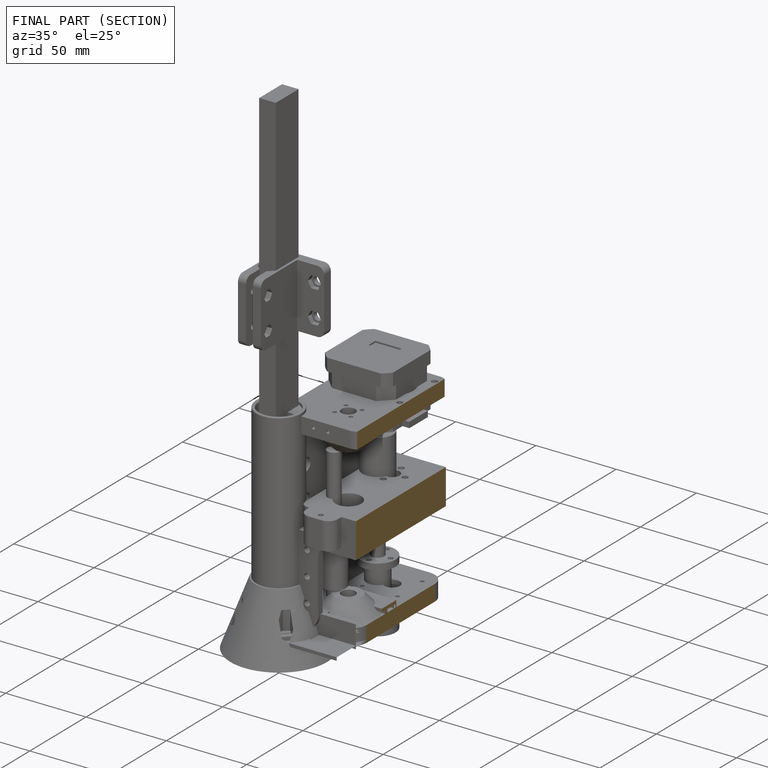
[diagram: finished part — half-section view (interior)]
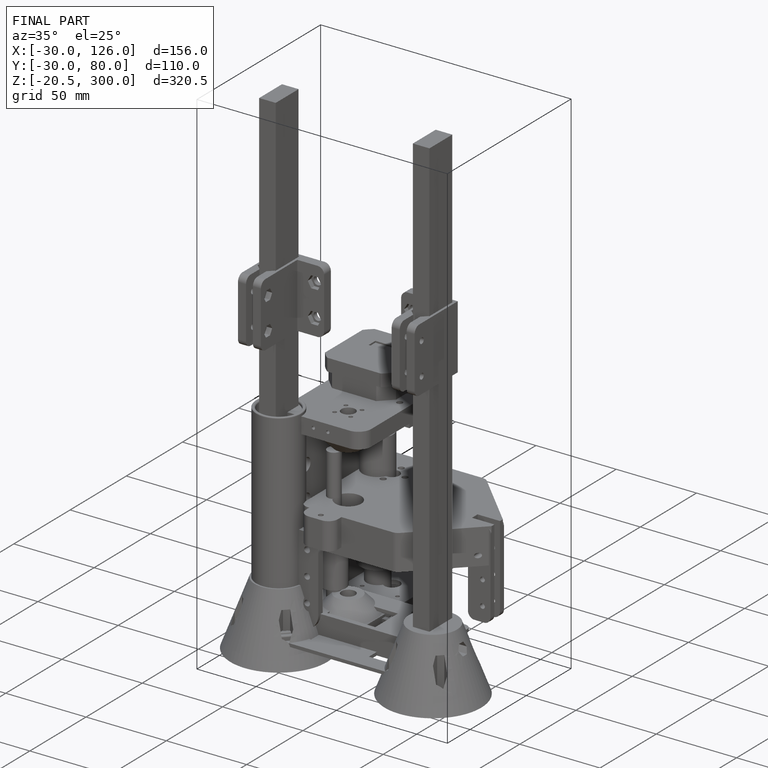
[diagram: finished part — iso view with bounding-box wireframe]
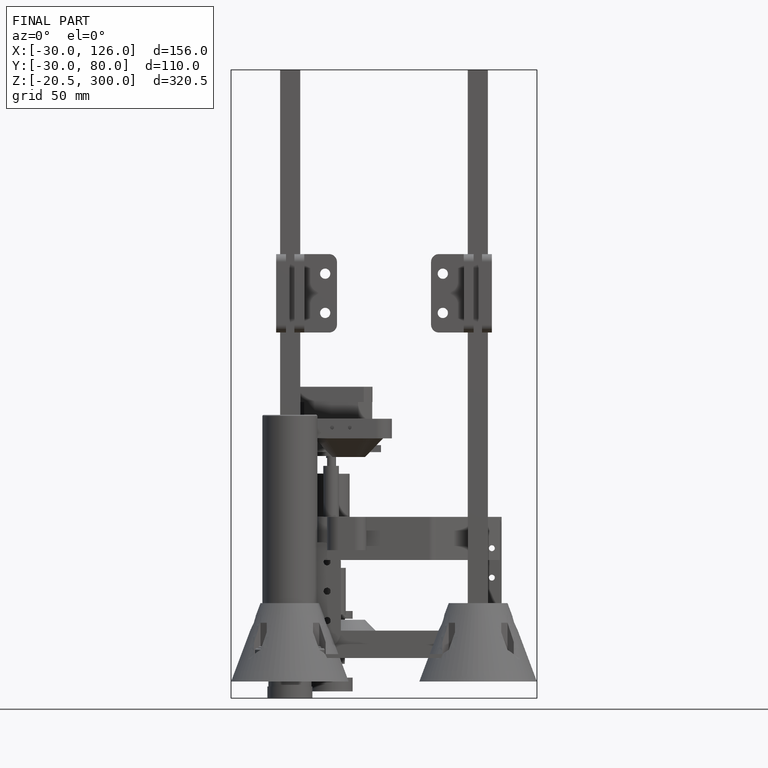
[diagram: finished part — front view with bounding-box wireframe]
